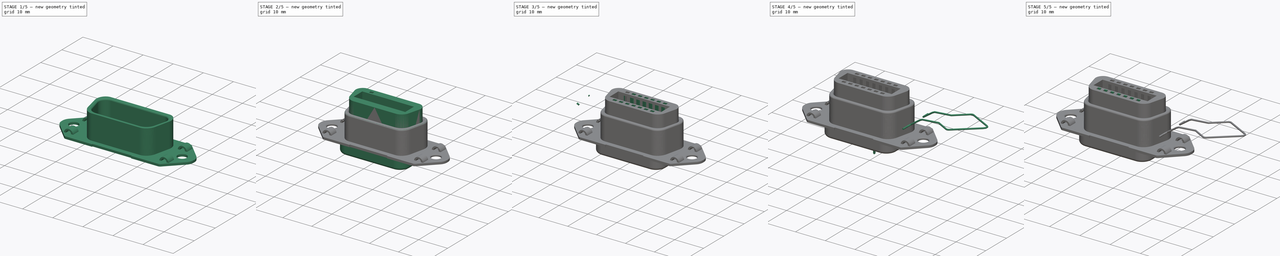
[diagram: build sequence overview — one tinted view per stage of 5, left to right]
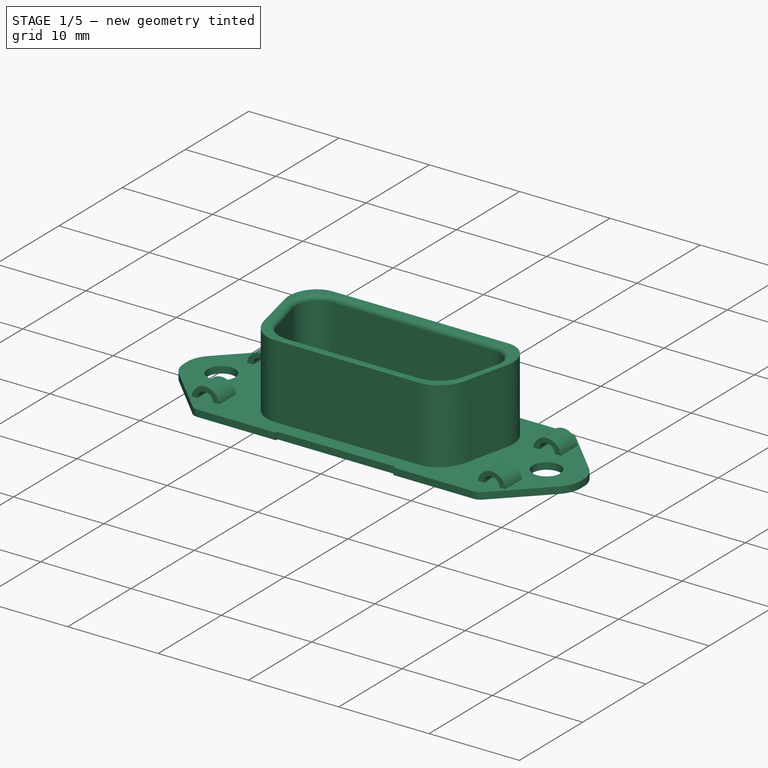
[diagram: stage 1 of 5 — iso view after this stage's code; geometry added in this stage tinted green]
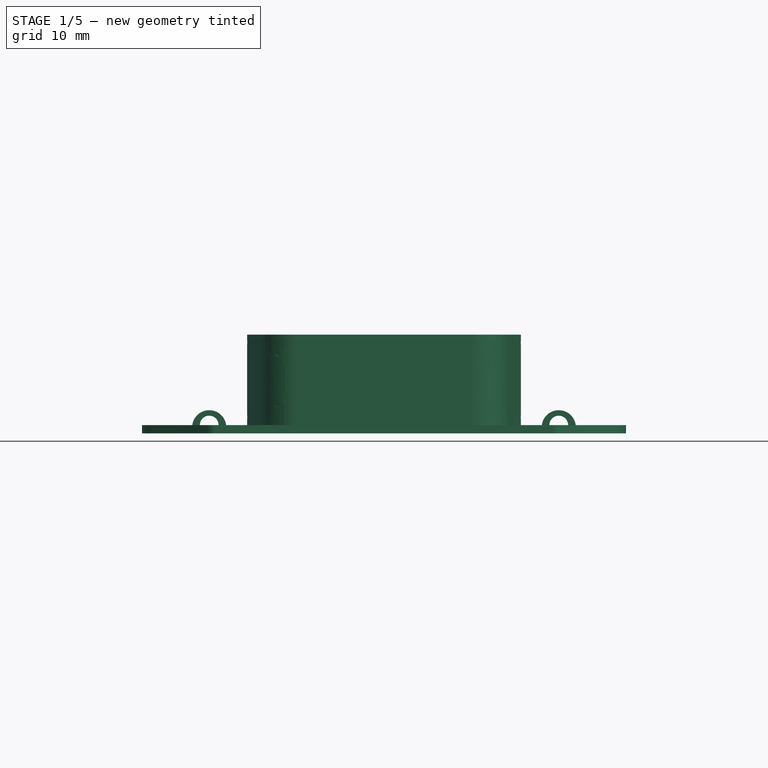
[diagram: stage 1 of 5 — front view after this stage's code; geometry added in this stage tinted green]
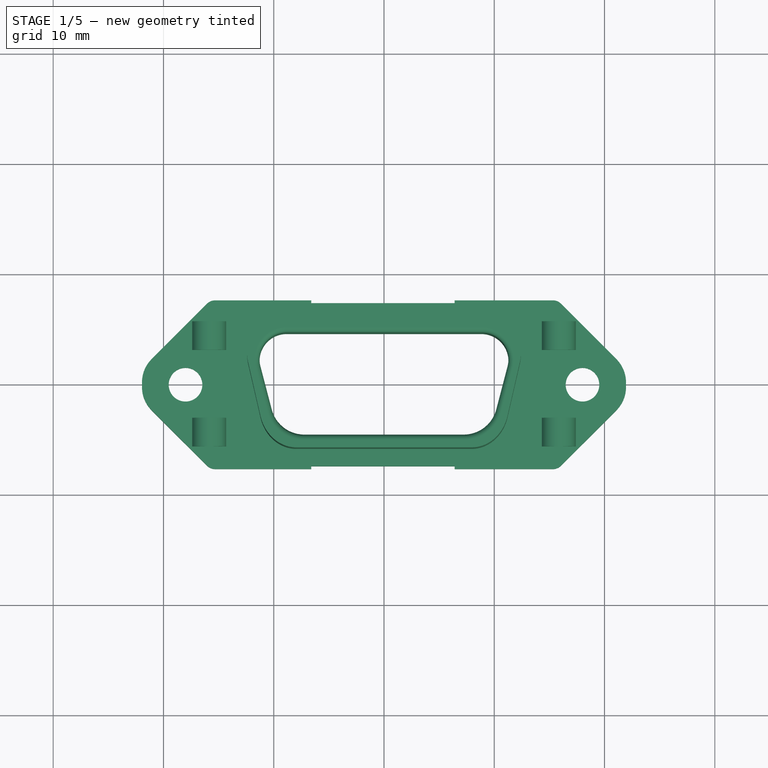
[diagram: stage 1 of 5 — top view after this stage's code; geometry added in this stage tinted green]
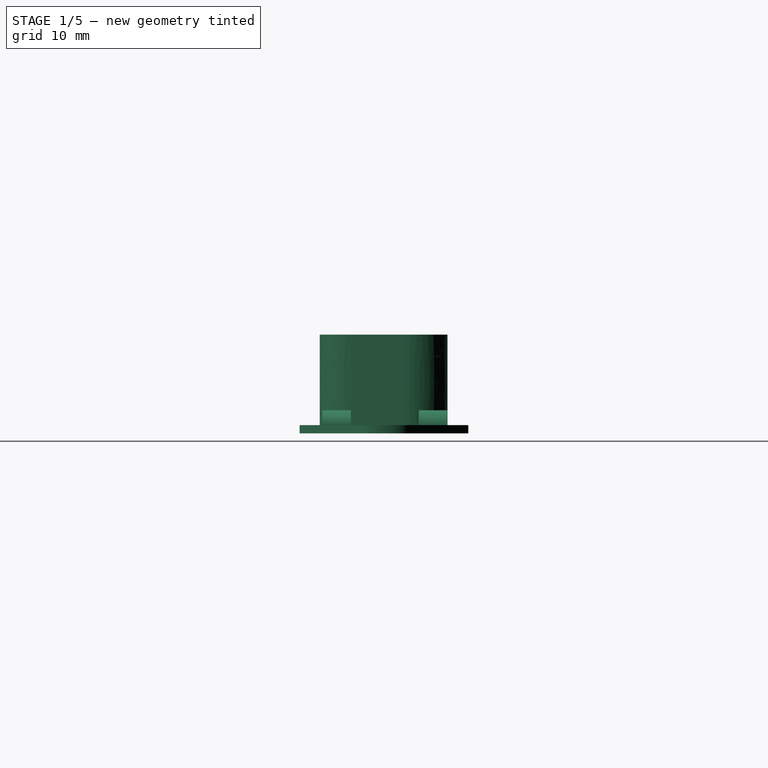
[diagram: stage 1 of 5 — right view after this stage's code; geometry added in this stage tinted green]
FCSTD DOCUMENT  (FreeCAD 0.20R29177 (Git))
Label: Norcomp_111-014-213L001
License: All rights reserved
LicenseURL: http://en.wikipedia.org/wiki/All_rights_reserved
objects: PartDesign::Fillet×13, Part::FeaturePython×12, PartDesign::AdditiveBox×11, PartDesign::Chamfer×11, PartDesign::SubtractiveBox×11, PartDesign::Mirrored×8, Sketcher::SketchObject×6, Part::Part2DObjectPython×5, PartDesign::AdditiveCylinder×4, PartDesign::Body×4, PartDesign::MultiTransform×4, PartDesign::SubtractiveCylinder×3, PartDesign::Pocket×3, PartDesign::LinearPattern×3, PartDesign::Pad×2, App::Part×2, Part::MultiFuse×1, PartDesign::FeatureBase×1
note: 159 computed .brp shape members not serialized (recipe doc carries the construction recipe); baked Part::Feature solids carry a one-line shape summary decoded from their .brp

FEATURE [Sketcher::SketchObject] Sketch001  label="pin-holes"
  FullyConstrained = false
  MapMode = 5
  Support = -> [XY_Plane017]
  sketch-geometry (16):
    g0: Circle CenterX=18 CenterY=0 CenterZ=0 NormalX=0 NormalY=0 NormalZ=1 AngleXU=0 Radius=1.525
    g1: Circle CenterX=-18 CenterY=0 CenterZ=0 NormalX=0 NormalY=0 NormalZ=1 AngleXU=0 Radius=1.525
    g2: Circle CenterX=6.48 CenterY=2.145 CenterZ=0 NormalX=0 NormalY=0 NormalZ=1 AngleXU=0 Radius=0.5
    g3: Circle CenterX=4.32 CenterY=2.145 CenterZ=0 NormalX=0 NormalY=0 NormalZ=1 AngleXU=0 Radius=0.5
    g4: Circle CenterX=2.16 CenterY=2.145 CenterZ=0 NormalX=0 NormalY=0 NormalZ=1 AngleXU=0 Radius=0.5
    g5: Circle CenterX=0 CenterY=2.145 CenterZ=0 NormalX=0 NormalY=0 NormalZ=1 AngleXU=0 Radius=0.5
    g6: Circle CenterX=-2.16 CenterY=2.145 CenterZ=0 NormalX=0 NormalY=0 NormalZ=1 AngleXU=0 Radius=0.5
    g7: Circle CenterX=-4.32 CenterY=2.145 CenterZ=0 NormalX=0 NormalY=0 NormalZ=1 AngleXU=0 Radius=0.5
    g8: Circle CenterX=-6.48 CenterY=2.145 CenterZ=0 NormalX=0 NormalY=0 NormalZ=1 AngleXU=0 Radius=0.5
    g9: Circle CenterX=0 CenterY=-2.145 CenterZ=0 NormalX=0 NormalY=0 NormalZ=1 AngleXU=0 Radius=0.5
    g10: Circle CenterX=6.48 CenterY=-2.145 CenterZ=0 NormalX=0 NormalY=0 NormalZ=1 AngleXU=0 Radius=0.5
    g11: Circle CenterX=4.32 CenterY=-2.145 CenterZ=0 NormalX=0 NormalY=0 NormalZ=1 AngleXU=0 Radius=0.5
    g12: Circle CenterX=2.16 CenterY=-2.145 CenterZ=0 NormalX=0 NormalY=0 NormalZ=1 AngleXU=0 Radius=0.5
    g13: Circle CenterX=-2.16 CenterY=-2.145 CenterZ=0 NormalX=0 NormalY=0 NormalZ=1 AngleXU=0 Radius=0.5
    g14: Circle CenterX=-4.32 CenterY=-2.145 CenterZ=0 NormalX=0 NormalY=0 NormalZ=1 AngleXU=0 Radius=0.5
    g15: Circle CenterX=-6.48 CenterY=-2.145 CenterZ=0 NormalX=0 NormalY=0 NormalZ=1 AngleXU=0 Radius=0.5
FEATURE [PartDesign::AdditiveBox] Box057
  AttacherType = Attacher::AttachEngine3D
  AttachmentOffset = pos=(-21.95,-7.65,-0.75) rot=(0,0,1;0rad)
  Height = 0.75
  Length = 43.9
  MapMode = 5
  Placement = pos=(-21.95,-7.65,-0.75) rot=(0,0,1;0rad)
  Support = -> [XY_Plane017]
  Width = 15.3
FEATURE [PartDesign::Chamfer] Chamfer004
  Angle = 45
  Base = -> Box057 [Edge1,Edge3,Edge7,Edge5]
  BaseFeature = -> Box057
  ChamferType = 0
  FlipDirection = false
  Placement = pos=(-21.95,-7.65,-0.75) rot=(0,0,1;0rad)
  Size = 6.2
  Size2 = 1
  SupportTransform = false
  UseAllEdges = false
FEATURE [PartDesign::Fillet] Fillet069
  Base = -> Chamfer004 [Edge2,Edge3,Edge24,Edge23]
  BaseFeature = -> Chamfer004
  Placement = pos=(-21.95,-7.65,-0.75) rot=(0,0,1;0rad)
  Radius = 3
  SupportTransform = false
  UseAllEdges = false
FEATURE [Sketcher::SketchObject] Sketch002  label="chassis001"
  FullyConstrained = false
  MapMode = 5
  Support = -> [XY_Plane017]
  sketch-geometry (22):
    g0: LineSegment StartX=15.5 StartY=-7.7 StartZ=0 EndX=-15.5 EndY=-7.7 EndZ=0
    g1: LineSegment StartX=-15.5 StartY=7.7 StartZ=0 EndX=15.5 EndY=7.7 EndZ=0
    g2: ArcOfCircle CenterX=-10.7 CenterY=5.404 CenterZ=0 NormalX=0 NormalY=0 NormalZ=1 AngleXU=1.8744 Radius=1.722 StartAngle=0 EndAngle=1.2672
    g3: LineSegment StartX=-11.1999 StartY=7.04954 StartZ=0 EndX=11.1999 EndY=7.04954 EndZ=0
    g4: ArcOfCircle CenterX=10.7 CenterY=5.404 CenterZ=0 NormalX=0 NormalY=0 NormalZ=1 AngleXU=1.2672 Radius=1.722 StartAngle=5.02159 EndAngle=6.28319
    g5: LineSegment StartX=-21.1655 StartY=2.01497 StartZ=0 EndX=-15.6356 EndY=7.63507 EndZ=0
    g6: LineSegment StartX=-15.6356 StartY=7.63507 StartZ=0 EndX=-15.5 EndY=7.7 EndZ=0
    g7: LineSegment StartX=-15.6356 StartY=-7.63507 StartZ=0 EndX=-21.1655 EndY=-2.01497 EndZ=0
    g8: LineSegment StartX=-15.5 StartY=-7.7 StartZ=0 EndX=-15.6356 EndY=-7.63507 EndZ=0
    g9: LineSegment StartX=15.6353 StartY=-7.63492 StartZ=0 EndX=15.5 EndY=-7.7 EndZ=0
    g10: LineSegment StartX=21.1655 StartY=-2.01497 StartZ=0 EndX=15.6356 EndY=-7.63507 EndZ=0
    g11: LineSegment StartX=15.6356 StartY=7.63507 StartZ=0 EndX=21.1655 EndY=2.01497 EndZ=0
    g12: LineSegment StartX=15.5224 StartY=7.69472 StartZ=0 EndX=15.6224 EndY=7.64472 EndZ=0
    g13: LineSegment StartX=-10.8716 StartY=-5.50704 StartZ=0 EndX=-12.4215 EndY=5.39696 EndZ=0
    g14: LineSegment StartX=6.42951e-06 StartY=-7.05136 StartZ=0 EndX=-9.65081 EndY=-7.0526 EndZ=0
    g15: LineSegment StartX=9.65081 StartY=-7.0446 StartZ=0 EndX=-6.42951e-06 EndY=-7.04336 EndZ=0
    g16: LineSegment StartX=12.4215 StartY=5.40496 StartZ=0 EndX=10.8716 EndY=-5.49904 EndZ=0
    g17: ArcOfCircle CenterX=-19.15 CenterY=4.441e-13 CenterZ=0 NormalX=0 NormalY=0 NormalZ=1 AngleXU=-2.35619 Radius=2.85 StartAngle=4.71246 EndAngle=6.28311
    g18: ArcOfCircle CenterX=19.15 CenterY=4.388e-13 CenterZ=0 NormalX=0 NormalY=0 NormalZ=1 AngleXU=-0.785398 Radius=2.85 StartAngle=7.12766e-05 EndAngle=1.57073
    g19: ArcOfCircle CenterX=10.7 CenterY=5.404 CenterZ=0 NormalX=0 NormalY=0 NormalZ=1 AngleXU=1.2672 Radius=1.722 StartAngle=5.01599 EndAngle=5.01996
    g20: ArcOfCircle CenterX=-9.15014 CenterY=-5.40446 CenterZ=0 NormalX=0 NormalY=0 NormalZ=1 AngleXU=-1.8744 Radius=1.72473 StartAngle=5.0743 EndAngle=6.28307
    g21: ArcOfCircle CenterX=9.15014 CenterY=-5.39646 CenterZ=0 NormalX=0 NormalY=0 NormalZ=1 AngleXU=-1.2672 Radius=1.72473 StartAngle=0.000111196 EndAngle=1.20889
FEATURE [PartDesign::AdditiveCylinder] Cylinder016  label="hinge-top-left"
  Angle = 180
  AttacherType = Attacher::AttachEngine3D
  AttachmentOffset = pos=(-15.85,5.75,-0.2) rot=(1,0,0;1.5708rad)
  BaseFeature = -> Fillet069
  FirstAngle = 0
  Height = 2.6
  MapMode = 5
  Placement = pos=(-15.85,5.75,-0.2) rot=(1,0,0;1.5708rad)
  Radius = 1.55
  SecondAngle = 0
  Support = -> [XY_Plane017]
FEATURE [PartDesign::AdditiveCylinder] Cylinder017  label="hinge-bot-left"
  Angle = 180
  AttacherType = Attacher::AttachEngine3D
  AttachmentOffset = pos=(-15.85,-3,-0.2) rot=(1,0,0;1.5708rad)
  BaseFeature = -> Cylinder016
  FirstAngle = 0
  Height = 2.6
  MapMode = 5
  Placement = pos=(-15.85,-3,-0.2) rot=(1,0,0;1.5708rad)
  Radius = 1.55
  SecondAngle = 0
  Support = -> [XY_Plane017]
FEATURE [PartDesign::AdditiveCylinder] Cylinder018  label="hinge-bot-right"
  Angle = 180
  AttacherType = Attacher::AttachEngine3D
  AttachmentOffset = pos=(15.85,-3,-0.2) rot=(1,0,0;1.5708rad)
  BaseFeature = -> Cylinder017
  FirstAngle = 0
  Height = 2.6
  MapMode = 5
  Placement = pos=(15.85,-3,-0.2) rot=(1,0,0;1.5708rad)
  Radius = 1.55
  SecondAngle = 0
  Support = -> [XY_Plane017]
FEATURE [PartDesign::AdditiveCylinder] Cylinder019  label="hinge-top-right"
  Angle = 180
  AttacherType = Attacher::AttachEngine3D
  AttachmentOffset = pos=(15.85,5.75,-0.2) rot=(1,0,0;1.5708rad)
  BaseFeature = -> Cylinder018
  FirstAngle = 0
  Height = 2.6
  MapMode = 5
  Placement = pos=(15.85,5.75,-0.2) rot=(1,0,0;1.5708rad)
  Radius = 1.55
  SecondAngle = 0
  Support = -> [XY_Plane017]
FEATURE [PartDesign::SubtractiveCylinder] Cylinder020  label="hinge-holes-left"
  Angle = 180
  AttacherType = Attacher::AttachEngine3D
  AttachmentOffset = pos=(-15.85,7,0) rot=(1,0,0;1.5708rad)
  BaseFeature = -> Cylinder019
  FirstAngle = 0
  Height = 14
  MapMode = 5
  Placement = pos=(-15.85,7,0) rot=(1,0,0;1.5708rad)
  Radius = 0.85
  SecondAngle = 0
  Support = -> [XY_Plane017]
FEATURE [PartDesign::SubtractiveCylinder] Cylinder021  label="hinge-holes-right"
  Angle = 180
  AttacherType = Attacher::AttachEngine3D
  AttachmentOffset = pos=(15.85,7,0) rot=(1,0,0;1.5708rad)
  BaseFeature = -> Cylinder020
  FirstAngle = 0
  Height = 14
  MapMode = 5
  Placement = pos=(15.85,7,0) rot=(1,0,0;1.5708rad)
  Radius = 0.85
  SecondAngle = 0
  Support = -> [XY_Plane017]
FEATURE [PartDesign::Fillet] Fillet070
  Base = -> Cylinder021 [Edge31,Edge58,Edge62,Edge60]
  BaseFeature = -> Cylinder021
  Placement = pos=(15.85,7,0) rot=(1,0,0;1.5708rad)
  Radius = 1
  SupportTransform = false
  UseAllEdges = false
FEATURE [PartDesign::Pocket] Pocket  label="attach_n_pin-holes"
  BaseFeature = -> Fillet070
  Direction = (0,0,-1)
  Length = 2
  Length2 = 5
  Placement = pos=(15.85,7,0) rot=(1,0,0;1.5708rad)
  Profile = -> Sketch001
  ReferenceAxis = -> Sketch001 [N_Axis]
  Type = 0
FEATURE [Sketcher::SketchObject] Sketch003  label="plastic-opening"
  FullyConstrained = false
  sketch-geometry (10):
    g0: LineSegment StartX=-8.83497 StartY=4.60395 StartZ=0 EndX=0 EndY=4.60395 EndZ=0
    g1: LineSegment StartX=0 StartY=-4.65895 StartZ=0 EndX=-7.23029 EndY=-4.65895 EndZ=0
    g2: LineSegment StartX=-11.2063 StartY=1.5329 StartZ=0 EndX=-10.1838 EndY=-2.37837 EndZ=0
    g3: ArcOfCircle CenterX=-8.83497 CenterY=2.15287 CenterZ=0 NormalX=0 NormalY=0 NormalZ=1 AngleXU=0 Radius=2.45107 StartAngle=1.5708 EndAngle=3.39731
    g4: ArcOfCircle CenterX=-7.23029 CenterY=-1.60621 CenterZ=0 NormalX=0 NormalY=0 NormalZ=1 AngleXU=0 Radius=3.05275 StartAngle=3.39731 EndAngle=4.71239
    g5: LineSegment StartX=8.83497 StartY=4.60395 StartZ=0 EndX=0 EndY=4.60395 EndZ=0
    g6: LineSegment StartX=0 StartY=-4.65895 StartZ=0 EndX=7.23029 EndY=-4.65895 EndZ=0
    g7: LineSegment StartX=11.2063 StartY=1.5329 StartZ=0 EndX=10.1838 EndY=-2.37837 EndZ=0
    g8: ArcOfCircle CenterX=8.83497 CenterY=2.15287 CenterZ=0 NormalX=0 NormalY=0 NormalZ=1 AngleXU=0 Radius=2.45107 StartAngle=6.02747 EndAngle=7.85398
    g9: ArcOfCircle CenterX=7.23029 CenterY=-1.60621 CenterZ=0 NormalX=0 NormalY=0 NormalZ=1 AngleXU=0 Radius=3.05275 StartAngle=4.71239 EndAngle=6.02747
  constraints (12):
    c: Horizontal(g0)
    c: Horizontal(g1)
    c: Tangent(g0,g3) = 1.5708
    c: Tangent(g2,g3) = -1.5708
    c: Tangent(g2,g4) = -1.5708
    c: Tangent(g1,g4) = 1.5708
    c: Horizontal(g5)
    c: Horizontal(g6)
    c: Tangent(g5,g8) = -1.5708
    c: Tangent(g7,g8) = 1.5708
    c: Tangent(g7,g9) = 1.5708
    c: Tangent(g6,g9) = -1.5708
FEATURE [PartDesign::SubtractiveBox] Box  label="top-edge-cut"
  AttacherType = Attacher::AttachEngine3D
  AttachmentOffset = pos=(-6.6,7.4,-1) rot=(0,0,1;0rad)
  BaseFeature = -> Pocket
  Height = 1
  Length = 13
  MapMode = 5
  Placement = pos=(-6.6,7.4,-1) rot=(0,0,1;0rad)
  Support = -> [XY_Plane017]
  Width = 0.5
FEATURE [PartDesign::SubtractiveBox] Box058  label="bot-edge-cut"
  AttacherType = Attacher::AttachEngine3D
  AttachmentOffset = pos=(-6.6,-7.9,-1) rot=(0,0,1;0rad)
  BaseFeature = -> Box
  Height = 1
  Length = 13
  MapMode = 5
  Placement = pos=(-6.6,-7.9,-1) rot=(0,0,1;0rad)
  Support = -> [XY_Plane017]
  Width = 0.5
FEATURE [Sketcher::SketchObject] Sketch  label="outer-metal"
  FullyConstrained = false
  sketch-geometry (10):
    g0: BSplineCurve PolesCount=3 KnotsCount=2 Degree=2 IsPeriodic=0
    g1: BSplineCurve PolesCount=2 KnotsCount=2 Degree=1 IsPeriodic=0
    g2: BSplineCurve PolesCount=2 KnotsCount=2 Degree=1 IsPeriodic=0
    g3: BSplineCurve PolesCount=3 KnotsCount=2 Degree=2 IsPeriodic=0
    g4: BSplineCurve PolesCount=2 KnotsCount=2 Degree=1 IsPeriodic=0
    g5: BSplineCurve PolesCount=3 KnotsCount=2 Degree=2 IsPeriodic=0
    g6: BSplineCurve PolesCount=2 KnotsCount=2 Degree=1 IsPeriodic=0
    g7: BSplineCurve PolesCount=2 KnotsCount=2 Degree=1 IsPeriodic=0
    g8: BSplineCurve PolesCount=3 KnotsCount=2 Degree=2 IsPeriodic=0
    g9: BSplineCurve PolesCount=2 KnotsCount=2 Degree=1 IsPeriodic=0
FEATURE [PartDesign::Pad] Pad001
  BaseFeature = -> Box058
  Direction = (0,0,1)
  Length = 8.2
  Length2 = 10
  Placement = pos=(-6.6,-7.9,-1) rot=(0,0,1;0rad)
  Profile = -> Sketch
  ReferenceAxis = -> Sketch [N_Axis]
  Type = 0
FEATURE [PartDesign::Pocket] Pocket001  label="plastic-hole"
  BaseFeature = -> Pad001
  Direction = (0,0,-1)
  Length = 18
  Length2 = 5
  Midplane = true
  Placement = pos=(-6.6,-7.9,-1) rot=(0,0,1;0rad)
  Profile = -> Sketch003
  ReferenceAxis = -> Sketch003 [N_Axis]
  Type = 0
FEATURE [PartDesign::Fillet] Fillet  label="inner-plast-hole"
  Base = -> Pocket001 [Edge116,Edge114,Edge97,Edge100,Edge102,Edge104,Edge106,Edge108,Edge110,Edge112]
  BaseFeature = -> Pocket001
  Placement = pos=(-6.6,-7.9,-1) rot=(0,0,1;0rad)
  Radius = 0.5
  SupportTransform = false
  UseAllEdges = false
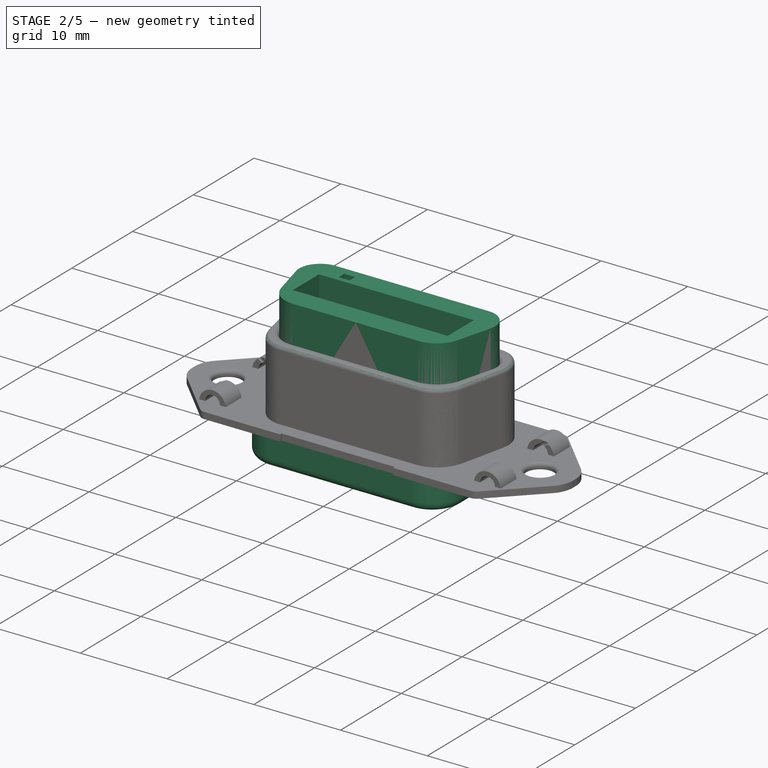
[diagram: stage 2 of 5 — iso view after this stage's code; geometry added in this stage tinted green]
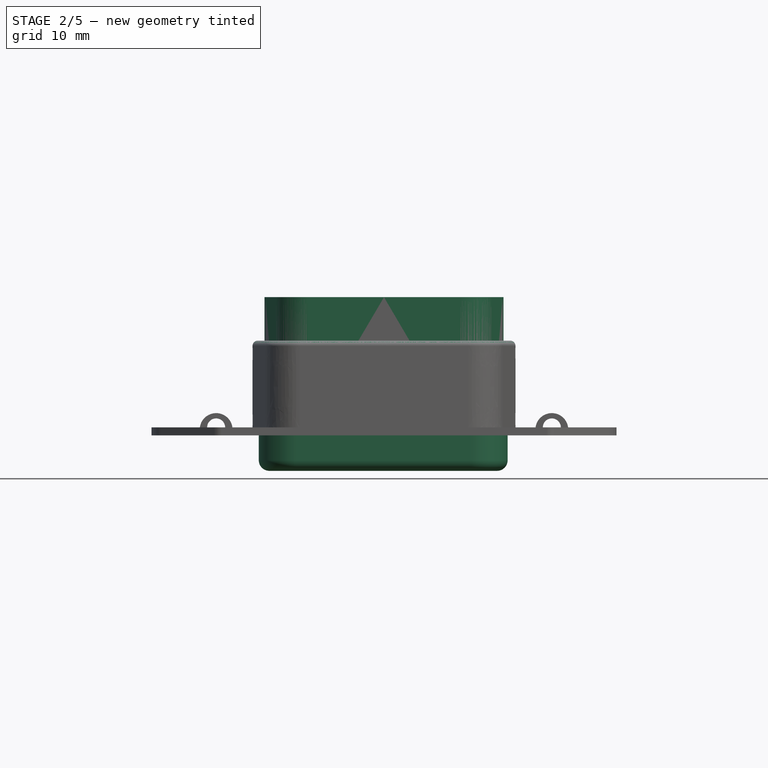
[diagram: stage 2 of 5 — front view after this stage's code; geometry added in this stage tinted green]
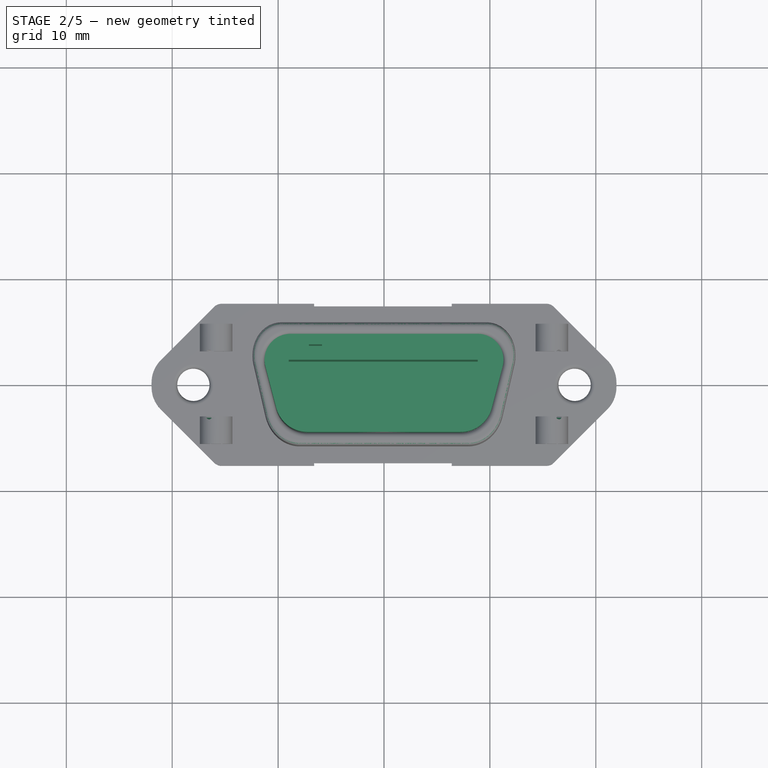
[diagram: stage 2 of 5 — top view after this stage's code; geometry added in this stage tinted green]
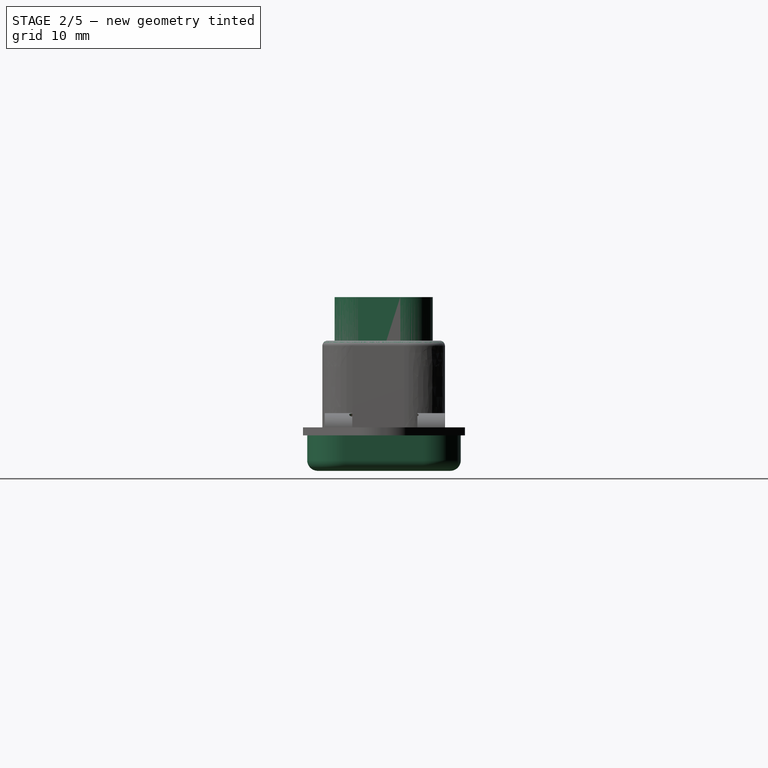
[diagram: stage 2 of 5 — right view after this stage's code; geometry added in this stage tinted green]
FEATURE [Sketcher::SketchObject] Sketch004  label="plastic-mass"
  FullyConstrained = false
  sketch-geometry (10):
    g0: LineSegment StartX=-8.83497 StartY=4.60395 StartZ=0 EndX=0 EndY=4.60395 EndZ=0
    g1: LineSegment StartX=0 StartY=-4.65895 StartZ=0 EndX=-7.23029 EndY=-4.65895 EndZ=0
    g2: LineSegment StartX=-11.2063 StartY=1.5329 StartZ=0 EndX=-10.1838 EndY=-2.37837 EndZ=0
    g3: ArcOfCircle CenterX=-8.83497 CenterY=2.15287 CenterZ=0 NormalX=0 NormalY=0 NormalZ=1 AngleXU=0 Radius=2.45107 StartAngle=1.5708 EndAngle=3.39731
    g4: ArcOfCircle CenterX=-7.23029 CenterY=-1.60621 CenterZ=0 NormalX=0 NormalY=0 NormalZ=1 AngleXU=0 Radius=3.05275 StartAngle=3.39731 EndAngle=4.71239
    g5: LineSegment StartX=8.83497 StartY=4.60395 StartZ=0 EndX=0 EndY=4.60395 EndZ=0
    g6: LineSegment StartX=0 StartY=-4.65895 StartZ=0 EndX=7.23029 EndY=-4.65895 EndZ=0
    g7: LineSegment StartX=11.2063 StartY=1.5329 StartZ=0 EndX=10.1838 EndY=-2.37837 EndZ=0
    g8: ArcOfCircle CenterX=8.83497 CenterY=2.15287 CenterZ=0 NormalX=0 NormalY=0 NormalZ=1 AngleXU=0 Radius=2.45107 StartAngle=6.02747 EndAngle=7.85398
    g9: ArcOfCircle CenterX=7.23029 CenterY=-1.60621 CenterZ=0 NormalX=0 NormalY=0 NormalZ=1 AngleXU=0 Radius=3.05275 StartAngle=4.71239 EndAngle=6.02747
  constraints (12):
    c: Horizontal(g0)
    c: Horizontal(g1)
    c: Tangent(g0,g3) = 1.5708
    c: Tangent(g2,g3) = -1.5708
    c: Tangent(g2,g4) = -1.5708
    c: Tangent(g1,g4) = 1.5708
    c: Horizontal(g5)
    c: Horizontal(g6)
    c: Tangent(g5,g8) = -1.5708
    c: Tangent(g7,g8) = 1.5708
    c: Tangent(g7,g9) = 1.5708
    c: Tangent(g6,g9) = -1.5708
FEATURE [PartDesign::Pad] Pad  label="plastic-base"
  Direction = (0,0,1)
  Length = 12.3
  Length2 = 10
  Profile = -> Sketch004
  ReferenceAxis = -> Sketch004 [N_Axis]
  Type = 0
FEATURE [PartDesign::SubtractiveBox] Box059
  AttacherType = Attacher::AttachEngine3D
  AttachmentOffset = pos=(-9,-2.15,2.3) rot=(0,0,1;0rad)
  BaseFeature = -> Pad
  Height = 10
  Length = 17.85
  MapMode = 5
  Placement = pos=(-9,-2.15,2.3) rot=(0,0,1;0rad)
  Support = -> [XY_Plane002]
  Width = 4.3
FEATURE [PartDesign::Fillet] Fillet071  label="outer-plast-hole"
  Base = -> Fillet [Edge60,Edge59,Edge61,Edge63,Edge65,Edge67,Edge68,Edge66,Edge64,Edge62]
  BaseFeature = -> Fillet
  Placement = pos=(-6.6,-7.9,-1) rot=(0,0,1;0rad)
  Radius = 0.5
  SupportTransform = false
  UseAllEdges = false
FEATURE [PartDesign::SubtractiveBox] Box060  label="front-hole-top-leftmost"
  AttacherType = Attacher::AttachEngine3D
  AttachmentOffset = pos=(-7.1,2.7,5) rot=(0,0,1;0rad)
  BaseFeature = -> Box059
  Height = 7.5
  Length = 1.25
  MapMode = 5
  Placement = pos=(-7.1,2.7,5) rot=(0,0,1;0rad)
  Support = -> [XY_Plane002]
  Width = 0.9
FEATURE [PartDesign::Fillet] Fillet072  label="attach-holes-smooth"
  Base = -> Fillet071 [Edge261,Edge259,Edge260,Edge263,Edge265,Edge264]
  BaseFeature = -> Fillet071
  Placement = pos=(-6.6,-7.9,-1) rot=(0,0,1;0rad)
  Radius = 0.4
  SupportTransform = false
  UseAllEdges = false
FEATURE [Sketcher::SketchObject] Sketch005  label="pin-holes001"
  FullyConstrained = false
  MapMode = 5
  Support = -> [XY_Plane002]
  sketch-geometry (10):
    g0: ArcOfCircle CenterX=-7.18 CenterY=2.34 CenterZ=0 NormalX=0 NormalY=0 NormalZ=1 AngleXU=0 Radius=0.1 StartAngle=3.14159 EndAngle=4.71239
    g1: LineSegment StartX=-7.28 StartY=2.34 StartZ=0 EndX=-7.28 EndY=2.54 EndZ=0
    g2: ArcOfCircle CenterX=-7.18 CenterY=2.54 CenterZ=0 NormalX=0 NormalY=0 NormalZ=1 AngleXU=0 Radius=0.1 StartAngle=1.5708 EndAngle=3.14159
    g3: LineSegment StartX=-7.18 StartY=2.64 StartZ=0 EndX=-5.78 EndY=2.64 EndZ=0
    g4: ArcOfCircle CenterX=-5.78 CenterY=2.54 CenterZ=0 NormalX=0 NormalY=0 NormalZ=1 AngleXU=0 Radius=0.1 StartAngle=-1.8e-15 EndAngle=1.5708
    g5: LineSegment StartX=-5.68 StartY=2.54 StartZ=0 EndX=-5.68 EndY=2.34 EndZ=0
    g6: ArcOfCircle CenterX=-5.78 CenterY=2.34 CenterZ=0 NormalX=0 NormalY=0 NormalZ=1 AngleXU=0 Radius=0.1 StartAngle=4.71239 EndAngle=6.28319
    g7: LineSegment StartX=-5.78 StartY=2.24 StartZ=0 EndX=-7.18 EndY=2.24 EndZ=0
    g8: GeomPoint X=-7.28 Y=2.24 Z=0
    g9: GeomPoint X=-5.68 Y=2.64 Z=0
  constraints (19):
    c: Tangent(g0,g1) = 1.5708
    c: Tangent(g1,g2) = 1.5708
    c: Tangent(g2,g3) = 1.5708
    c: Tangent(g3,g4) = 1.5708
    c: Tangent(g4,g5) = 1.5708
    c: Tangent(g5,g6) = 1.5708
    c: Tangent(g6,g7) = 1.5708
    c: Tangent(g7,g0) = 1.5708
    c: Horizontal(g3)
    c: Horizontal(g7)
    c: Vertical(g1)
    c: Vertical(g5)
    c: Equal(g0,g2)
    c: Equal(g2,g4)
    c: Equal(g4,g6)
    c: PointOnObject(g8,g1)
    c: PointOnObject(g8,g7)
    c: PointOnObject(g9,g3)
    c: PointOnObject(g9,g5)
FEATURE [PartDesign::Pocket] Pocket002  label="pinhole-back"
  AlongSketchNormal = false
  BaseFeature = -> Box060
  Direction = (0,0,-1)
  Length = 4.6
  Length2 = 0
  Midplane = true
  Placement = pos=(-7.1,2.7,5) rot=(0,0,1;0rad)
  Profile = -> Sketch005
  ReferenceAxis = -> Sketch005 [N_Axis]
  Type = 4
FEATURE [PartDesign::SubtractiveCylinder] Cylinder  label="hinge-groove-left-top"
  Angle = 180
  AttacherType = Attacher::AttachEngine3D
  AttachmentOffset = pos=(-15.475,3,0.46) rot=(0,-1,0;0.959931rad)
  BaseFeature = -> Fillet072
  FirstAngle = 0
  Height = 1.4
  MapMode = 5
  Placement = pos=(-15.475,3,0.46) rot=(0,-1,0;0.959931rad)
  Radius = 0.28
  SecondAngle = 0
  Support = -> [XY_Plane017]
FEATURE [PartDesign::Mirrored] Mirrored002
  MirrorPlane = -> YZ_Plane017
  Placement = pos=(-15.475,3,0.46) rot=(0,-1,0;0.959931rad)
FEATURE [PartDesign::Mirrored] Mirrored003
  MirrorPlane = -> XZ_Plane017
  Placement = pos=(-15.475,3,0.46) rot=(0,-1,0;0.959931rad)
FEATURE [PartDesign::MultiTransform] MultiTransform002  label="hinge-grooves"
  BaseFeature = -> Cylinder
  Originals = -> [Cylinder]
  Placement = pos=(-15.475,3,0.46) rot=(0,-1,0;0.959931rad)
  Transformations = -> [Mirrored002,Mirrored003]
FEATURE [PartDesign::AdditiveBox] Box075  label="back-cover-left"
  AttacherType = Attacher::AttachEngine3D
  AttachmentOffset = pos=(-11.5,-4.7,-0.75) rot=(0,0,1;0rad)
  BaseFeature = -> MultiTransform002
  Height = 0.3
  Length = 4
  MapMode = 5
  Placement = pos=(-11.5,-4.7,-0.75) rot=(0,0,1;0rad)
  Support = -> [XY_Plane017]
  Width = 9.3
FEATURE [PartDesign::Mirrored] Mirrored006  label="back-cover-right"
  BaseFeature = -> Box075
  MirrorPlane = -> YZ_Plane017
  Originals = -> [Box075]
  Placement = pos=(-11.5,-4.7,-0.75) rot=(0,0,1;0rad)
FEATURE [PartDesign::Body] Body002  label="Plastic-insert"
  Group = -> [Sketch004,Pad,Box059,Box060,Sketch005,Pocket002,MultiTransform,LinearPattern,Mirrored,MultiTransform001,LinearPattern001,Mirrored001,Box073,MultiTransform003,LinearPattern002,Mirrored004,Box074,Mirrored005,Box076,Mirrored007,Box077,Box078,Fillet076]
  Origin = -> Origin002
  Placement = pos=(0,0,0.05) rot=(0,0,1;0rad)
  Tip = -> Fillet076
FEATURE [PartDesign::AdditiveBox] Box079
  AttacherType = Attacher::AttachEngine3D
  AttachmentOffset = pos=(-11.825,-7.25,-4.1) rot=(0,0,1;0rad)
  BaseFeature = -> Mirrored006
  Height = 3.5
  Length = 23.5
  MapMode = 5
  Placement = pos=(-11.825,-7.25,-4.1) rot=(0,0,1;0rad)
  Support = -> [XY_Plane017]
  Width = 14.5
FEATURE [PartDesign::SubtractiveBox] Box080
  AttacherType = Attacher::AttachEngine3D
  AttachmentOffset = pos=(-10,-5.8,-5) rot=(0,0,1;0rad)
  BaseFeature = -> Box079
  Height = 4.5
  Length = 20
  MapMode = 5
  Placement = pos=(-10,-5.8,-5) rot=(0,0,1;0rad)
  Support = -> [XY_Plane017]
  Width = 11.6
FEATURE [PartDesign::Fillet] Fillet077
  Base = -> Box080 [Edge105,Edge107,Edge102,Edge103]
  BaseFeature = -> Box080
  Placement = pos=(-10,-5.8,-5) rot=(0,0,1;0rad)
  Radius = 3.5
  SupportTransform = false
  UseAllEdges = false
FEATURE [PartDesign::Fillet] Fillet078
  Base = -> Fillet077 [Edge197,Edge201,Edge195,Edge199]
  BaseFeature = -> Fillet077
  Placement = pos=(-10,-5.8,-5) rot=(0,0,1;0rad)
  Radius = 2.5
  SupportTransform = false
  UseAllEdges = false
FEATURE [PartDesign::Fillet] Fillet079
  Base = -> Fillet078 [Edge13,Edge11,Edge9,Edge10,Edge12,Edge14,Edge16,Edge15]
  BaseFeature = -> Fillet078
  Placement = pos=(-10,-5.8,-5) rot=(0,0,1;0rad)
  Radius = 1
  SupportTransform = false
  UseAllEdges = false
FEATURE [PartDesign::Fillet] Fillet080
  Base = -> Fillet079 [Edge102,Edge101]
  BaseFeature = -> Fillet079
  Placement = pos=(-10,-5.8,-5) rot=(0,0,1;0rad)
  Radius = 0.2
  SupportTransform = false
  UseAllEdges = false
FEATURE [PartDesign::Body] Body016  label="chassis-metal"
  Group = -> [Sketch002,Sketch003,Box057,Chamfer004,Fillet069,Cylinder016,Cylinder017,Cylinder018,Cylinder019,Cylinder020,Cylinder021,Fillet070,Sketch001,Pocket,Box,Box058,Sketch,Pad001,Pocket001,Fillet,Fillet071,Fillet072,Cylinder,MultiTransform002,Mirrored002,Mirrored003,Box075,Mirrored006,Box079,Box080,Fillet077,Fillet078,Fillet079,Fillet080]
  Origin = -> Origin017
  Placement = pos=(0,0,4.5) rot=(0,0,1;0rad)
  Tip = -> Fillet080
FEATURE [App::Part] Part001  label="Norcomp_111-014-213L001"
  Group = -> [Body002,Body016,Body017,Array,Clone001,Part]
  Origin = -> Origin020
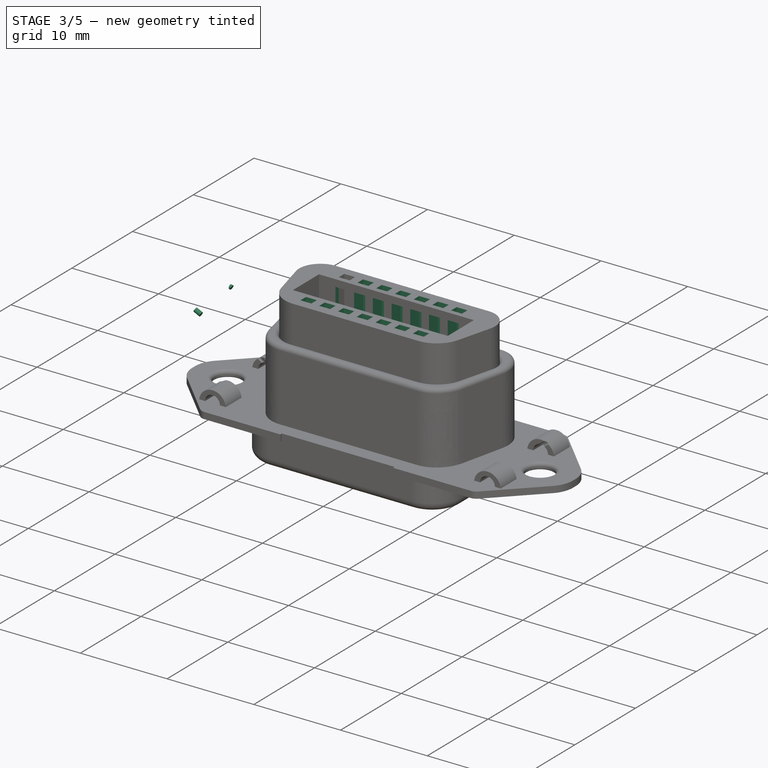
[diagram: stage 3 of 5 — iso view after this stage's code; geometry added in this stage tinted green]
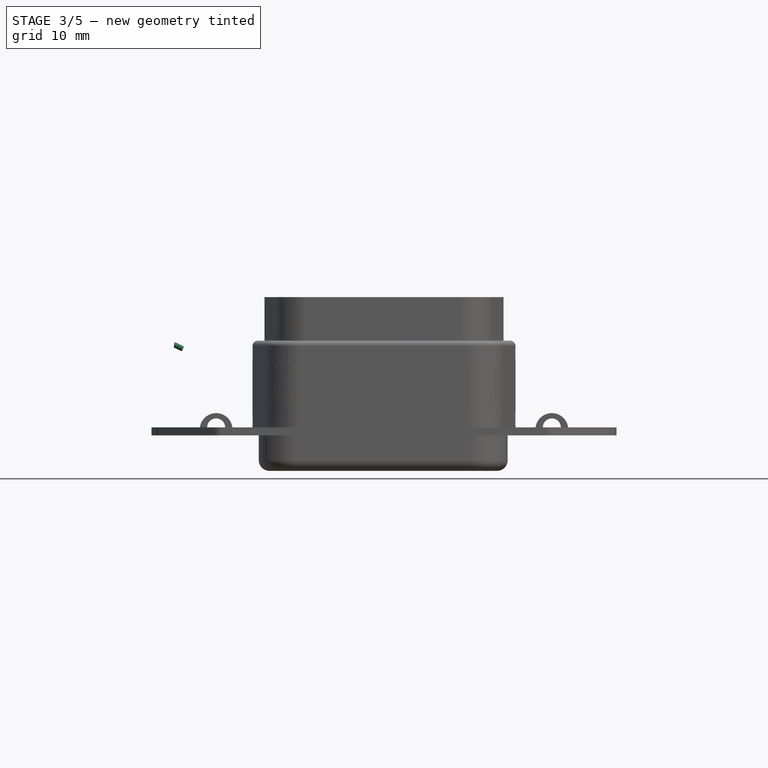
[diagram: stage 3 of 5 — front view after this stage's code; geometry added in this stage tinted green]
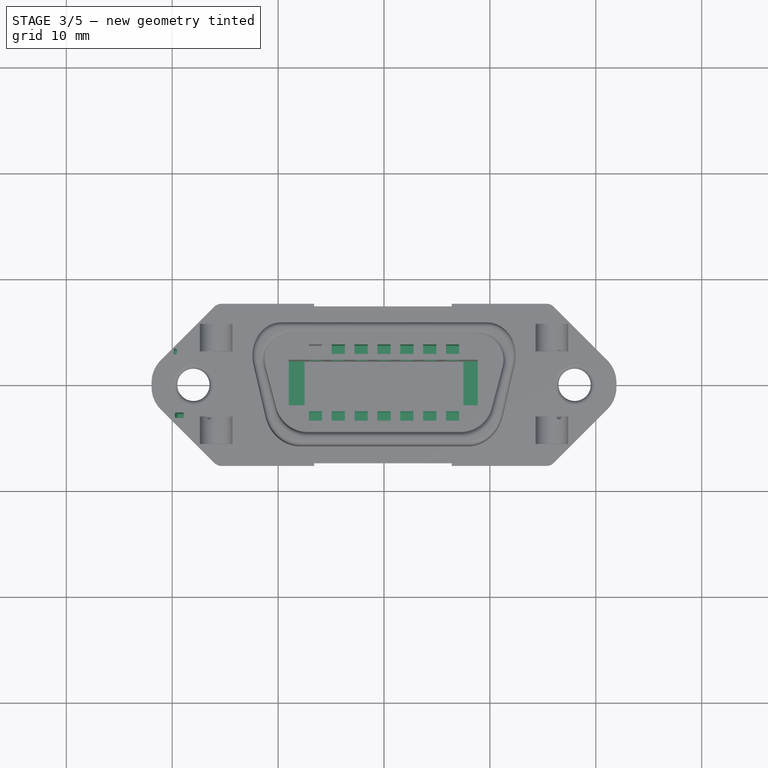
[diagram: stage 3 of 5 — top view after this stage's code; geometry added in this stage tinted green]
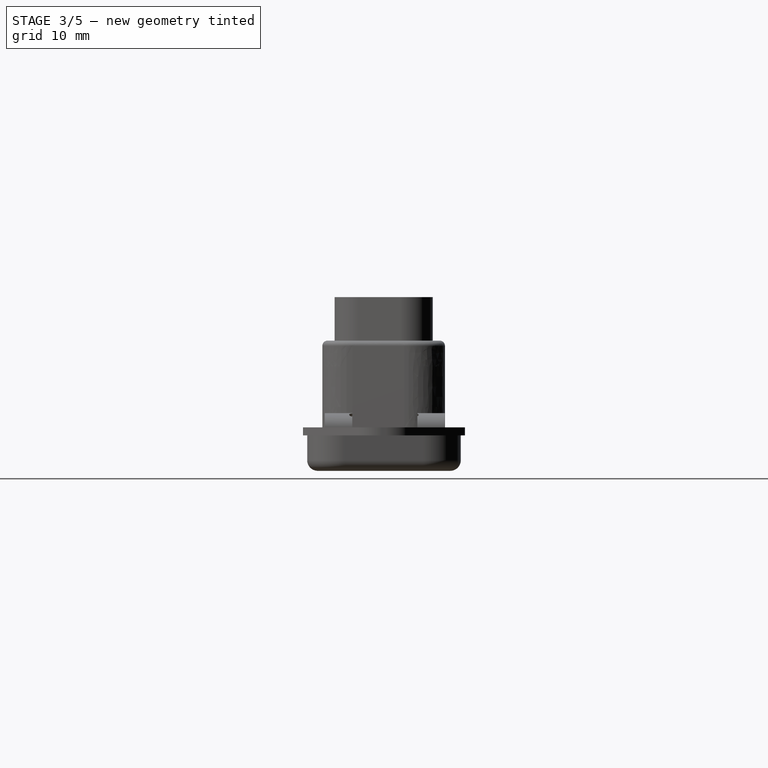
[diagram: stage 3 of 5 — right view after this stage's code; geometry added in this stage tinted green]
FEATURE [Part::FeaturePython] Pipe001  label="small-top"  # Arch/BIM 98 (typed FeaturePython)
  Base = -> Line002
  Diameter = 0.5
  HorizontalArea = 0
  IfcData = attributes={"GlobalId": {"name": "GlobalId", "type": "IfcGloballyUniqueId", "is_enum": false, "enum_values": []}, "Description": {"... (+487 chars omitted),+1 more (map truncated)
  IfcType = 98
  Length = 0.736202
  MoveBase = false
  MoveWithHost = false
  OffsetEnd = 0.0936098
  OffsetStart = 0.0384367
  PerimeterLength = 0
  PredefinedType = 0
  VerticalArea = 0
  WallThickness = 0
FEATURE [Part::FeaturePython] Pipe002  label="pipe-mid"  # Arch/BIM 98 (typed FeaturePython)
  Base = -> Wire002
  Diameter = 0.5
  HorizontalArea = 0
  IfcData = attributes={"GlobalId": {"name": "GlobalId", "type": "IfcGloballyUniqueId", "is_enum": false, "enum_values": []}, "Description": {"... (+487 chars omitted),+1 more (map truncated)
  IfcType = 98
  Length = 44.8277
  MoveBase = false
  MoveWithHost = false
  OffsetEnd = 0.0936098
  OffsetStart = 0.0936098
  PerimeterLength = 0
  PredefinedType = 0
  VerticalArea = 0
  WallThickness = 0
FEATURE [Part::FeaturePython] Pipe004  label="small-bot"  # Arch/BIM 98 (typed FeaturePython)
  Base = -> Line001
  Diameter = 0.5
  HorizontalArea = 0
  IfcData = attributes={"GlobalId": {"name": "GlobalId", "type": "IfcGloballyUniqueId", "is_enum": false, "enum_values": []}, "Description": {"... (+487 chars omitted),+1 more (map truncated)
  IfcType = 98
  Length = 0.736202
  MoveBase = false
  MoveWithHost = false
  OffsetEnd = 0.0936098
  OffsetStart = 0.0384367
  PerimeterLength = 0
  PredefinedType = 0
  VerticalArea = 0
  WallThickness = 0
FEATURE [Part::FeaturePython] Connector001  label="con-top-hi"  # Arch/BIM 97 (typed FeaturePython)
  ConnectorType = 0
  HorizontalArea = 0
  IfcData = attributes={"GlobalId": {"name": "GlobalId", "type": "IfcGloballyUniqueId", "is_enum": false, "enum_values": []}, "Description": {"... (+498 chars omitted),+1 more (map truncated)
  IfcType = 97
  MoveBase = false
  MoveWithHost = false
  PerimeterLength = 0
  Pipes = -> [Pipe001,Pipe002]
  PredefinedType = 0
  Radius = 0.5
  VerticalArea = 0
FEATURE [App::Part] Part  label="Handles"
  Group = -> [Pipe002,Pipe004,Pipe003,Connector002,Pipe,Connector003,Connector,Pipe001,Connector001,Fusion,Line002,Wire002,Wire003,Line001,Wire001,Body,Clone]
  Origin = -> Origin019
FEATURE [PartDesign::LinearPattern] LinearPattern
  Direction = -> Sketch005 [H_Axis]
  Length = 12.96
  Occurrences = 7
  Placement = pos=(-7.1,2.7,5) rot=(0,0,1;0rad)
FEATURE [PartDesign::Mirrored] Mirrored
  MirrorPlane = -> Sketch005 [H_Axis]
  Placement = pos=(-7.1,2.7,5) rot=(0,0,1;0rad)
FEATURE [PartDesign::MultiTransform] MultiTransform  label="pinholes-back"
  BaseFeature = -> Pocket002
  Originals = -> [Pocket002]
  Placement = pos=(-7.1,2.7,5) rot=(0,0,1;0rad)
  Transformations = -> [LinearPattern,Mirrored]
FEATURE [PartDesign::LinearPattern] LinearPattern001
  Direction = -> X_Axis002
  Length = 12.95
  Occurrences = 7
  Placement = pos=(-7.1,2.7,5) rot=(0,0,1;0rad)
FEATURE [PartDesign::Mirrored] Mirrored001
  MirrorPlane = -> XZ_Plane002
  Placement = pos=(-7.1,2.7,5) rot=(0,0,1;0rad)
FEATURE [PartDesign::MultiTransform] MultiTransform001  label="pinholes-front"
  BaseFeature = -> MultiTransform
  Originals = -> [Box060]
  Placement = pos=(-7.1,2.7,5) rot=(0,0,1;0rad)
  Transformations = -> [LinearPattern001,Mirrored001]
FEATURE [PartDesign::SubtractiveBox] Box073  label="pin-slot"
  AttacherType = Attacher::AttachEngine3D
  AttachmentOffset = pos=(-7.1,-3,6.5) rot=(0,0,1;0rad)
  BaseFeature = -> MultiTransform001
  Height = 5
  Length = 1.27
  MapMode = 5
  Placement = pos=(-7.1,-3,6.5) rot=(0,0,1;0rad)
  Support = -> [XY_Plane002]
  Width = 1.3
FEATURE [PartDesign::LinearPattern] LinearPattern002
  Direction = -> X_Axis002
  Length = 12.94
  Occurrences = 7
  Placement = pos=(-7.1,-3,6.5) rot=(0,0,1;0rad)
FEATURE [PartDesign::Mirrored] Mirrored004
  MirrorPlane = -> XZ_Plane002
  Placement = pos=(-7.1,-3,6.5) rot=(0,0,1;0rad)
FEATURE [PartDesign::MultiTransform] MultiTransform003  label="pin-slots"
  BaseFeature = -> Box073
  Originals = -> [Box073]
  Placement = pos=(-7.1,-3,6.5) rot=(0,0,1;0rad)
  Transformations = -> [LinearPattern002,Mirrored004]
FEATURE [PartDesign::SubtractiveBox] Box074  label="back-cut-right"
  AttacherType = Attacher::AttachEngine3D
  AttachmentOffset = pos=(-12.5,-5,-0.25) rot=(0,0,1;0rad)
  BaseFeature = -> MultiTransform003
  Height = 4
  Length = 5
  MapMode = 5
  Placement = pos=(-12.5,-5,-0.25) rot=(0,0,1;0rad)
  Support = -> [XY_Plane002]
  Width = 10
FEATURE [PartDesign::Mirrored] Mirrored005  label="back-cut-left"
  BaseFeature = -> Box074
  MirrorPlane = -> YZ_Plane002
  Originals = -> [Box074]
  Placement = pos=(-12.5,-5,-0.25) rot=(0,0,1;0rad)
FEATURE [PartDesign::AdditiveBox] Box076  label="back-fill-left"
  AttacherType = Attacher::AttachEngine3D
  AttachmentOffset = pos=(7.5,-5.74,0) rot=(0,0,1;0rad)
  BaseFeature = -> Mirrored005
  Height = 3.7
  Length = 2.5
  MapMode = 5
  Placement = pos=(7.5,-5.74,0) rot=(0,0,1;0rad)
  Support = -> [XY_Plane002]
  Width = 11.5
FEATURE [PartDesign::Mirrored] Mirrored007  label="back-fill-right"
  BaseFeature = -> Box076
  MirrorPlane = -> YZ_Plane002
  Originals = -> [Box076]
  Placement = pos=(7.5,-5.74,0) rot=(0,0,1;0rad)
FEATURE [PartDesign::AdditiveBox] Box077  label="back-fill-top"
  AttacherType = Attacher::AttachEngine3D
  AttachmentOffset = pos=(-7.5,4.605,0) rot=(0,0,1;0rad)
  BaseFeature = -> Mirrored007
  Height = 3.7
  Length = 15
  MapMode = 5
  Placement = pos=(-7.5,4.605,0) rot=(0,0,1;0rad)
  Support = -> [XY_Plane002]
  Width = 1.155
FEATURE [PartDesign::AdditiveBox] Box078
  AttacherType = Attacher::AttachEngine3D
  AttachmentOffset = pos=(-7.5,-5.74,0) rot=(0,0,1;0rad)
  BaseFeature = -> Box077
  Height = 3.7
  Length = 15
  MapMode = 5
  Placement = pos=(-7.5,-5.74,0) rot=(0,0,1;0rad)
  Support = -> [XY_Plane002]
  Width = 1.11
FEATURE [PartDesign::Fillet] Fillet076
  Base = -> Box078 [Edge961,Edge963,Edge951,Edge953]
  BaseFeature = -> Box078
  Placement = pos=(-7.5,-5.74,0) rot=(0,0,1;0rad)
  Radius = 2.49
  SupportTransform = false
  UseAllEdges = false
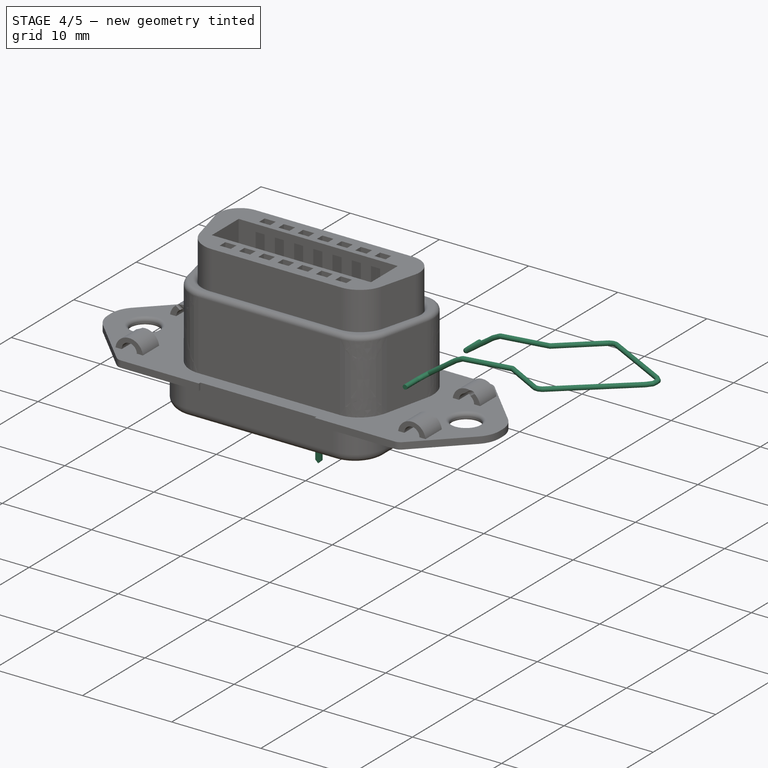
[diagram: stage 4 of 5 — iso view after this stage's code; geometry added in this stage tinted green]
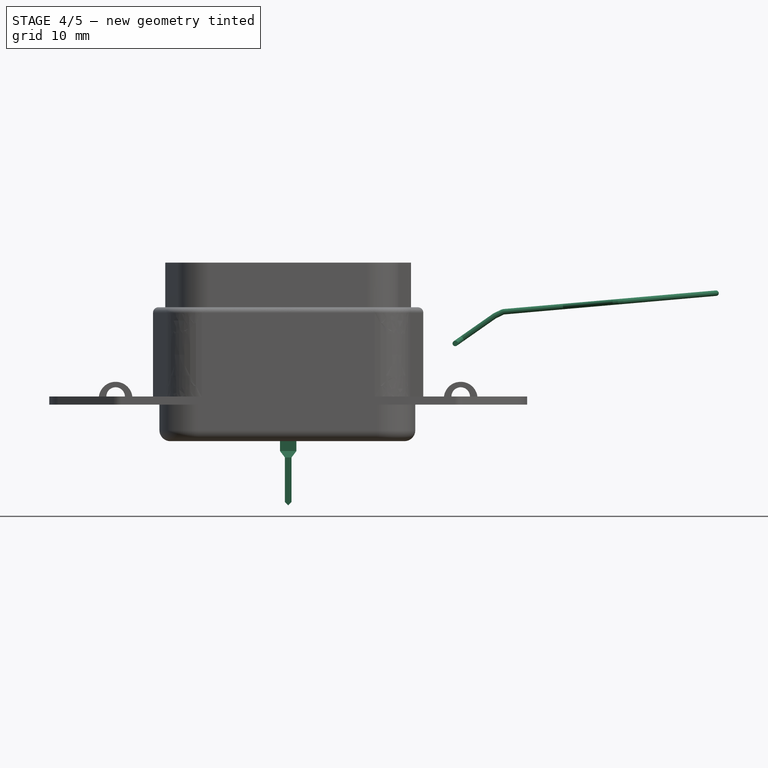
[diagram: stage 4 of 5 — front view after this stage's code; geometry added in this stage tinted green]
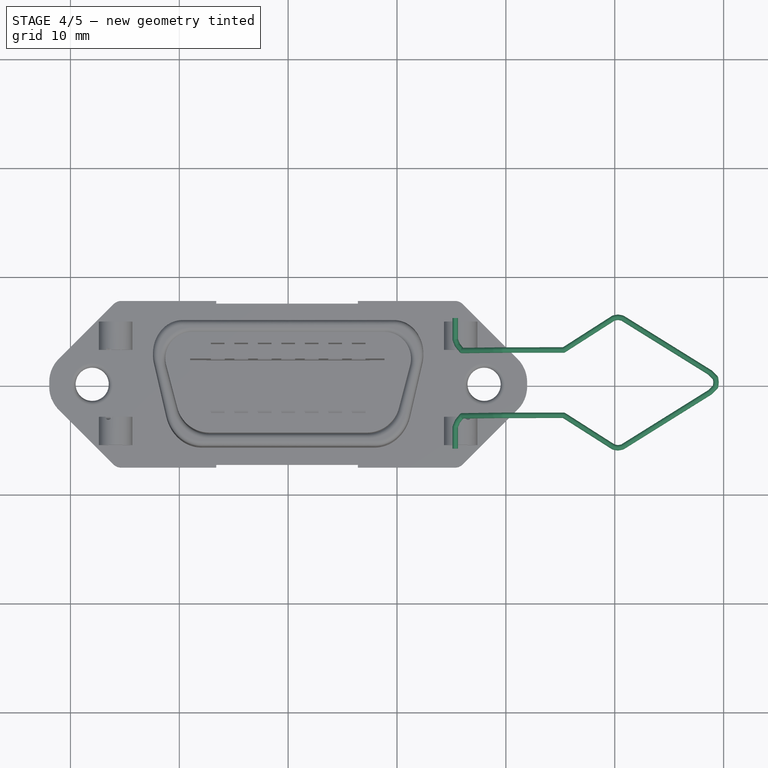
[diagram: stage 4 of 5 — top view after this stage's code; geometry added in this stage tinted green]
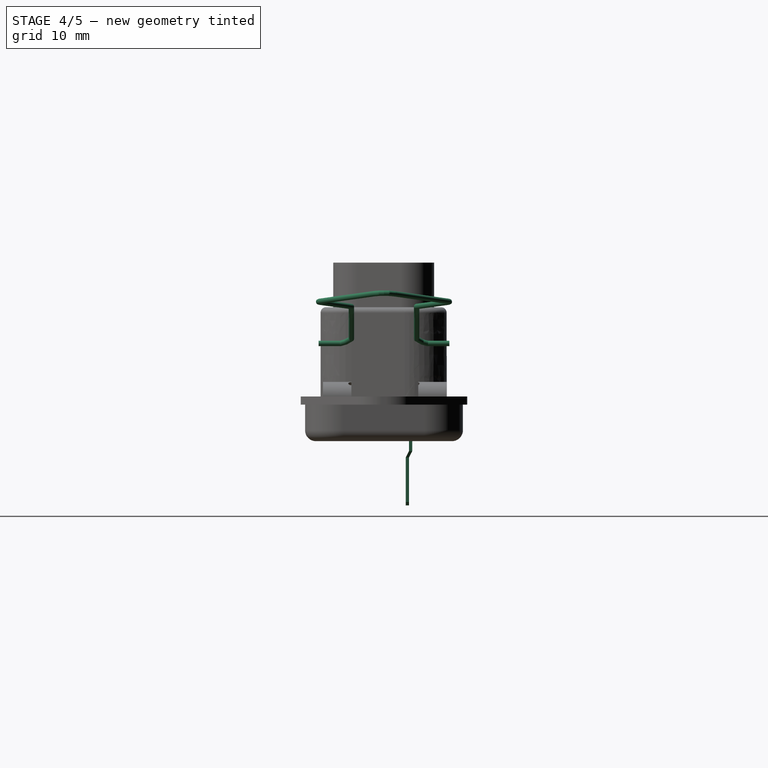
[diagram: stage 4 of 5 — right view after this stage's code; geometry added in this stage tinted green]
FEATURE [Part::Part2DObjectPython] Wire001  label="handle-top"  # Draft 2D object (typed FeaturePython)
  Area = 0
  ChamferSize = 0
  Closed = false
  End = (-18.9543,3,7.39874)
  FilletRadius = 0
  Length = 6.91612
  MakeFace = true
  Placement = pos=(-15.35,6,4.875) rot=(0,1,0;0.610865rad)
  Points = (5) [(0,0,0),(0,-2,0),(-0.25,-2.5,0),(-0.75,-3,0),(-4.4,-3,1.24345e-14)]
  Start = (-15.35,6,4.875)
  Subdivisions = 0
FEATURE [Part::Part2DObjectPython] Wire002  label="handle-mid"  # Draft 2D object (typed FeaturePython)
  Area = 0
  ChamferSize = 0
  Closed = false
  End = (-19.7333,-3,7.78219)
  FilletRadius = 0
  Length = 45.0149
  MakeFace = true
  Placement = pos=(-15.35,6,7.3987) rot=(0,1,0;0.087266rad)
  Points = (15) [(-4.4,-3,2.66454e-15),(-10,-3,0),(-14.6,-0.075,0),(-15,0,0),(-15.4,-0.075,0),(-23.5,-5.1,0),(-24,-5.6,0),(-24.05,-6,0),(-24,-6.4,0),(-23.5,-6.9,0),+5 more]
  Start = (-19.7333,3,7.78219)
  Subdivisions = 0
FEATURE [Part::Part2DObjectPython] Wire003  label="handle-bot"  # Draft 2D object (typed FeaturePython)
  Area = 0
  ChamferSize = 0
  Closed = false
  End = (-15.35,-6,4.875)
  FilletRadius = 0
  Length = 6.91612
  MakeFace = true
  Placement = pos=(-15.35,6,4.875) rot=(0,1,0;0.610865rad)
  Points = (5) [(-4.4,-9,1.24345e-14),(-0.75,-9,0),(-0.25,-9.5,0),(0,-10,0),(0,-12,0)]
  Start = (-18.9543,-3,7.39874)
  Subdivisions = 0
FEATURE [Part::Part2DObjectPython] Line001  label="connect-low"  # Draft 2D object (typed FeaturePython)
  Area = 0
  ChamferSize = 0
  Closed = false
  End = (-19.7333,-3,7.78219)
  FilletRadius = 0
  Length = 0.868248
  MakeFace = true
  Placement = pos=(-18.9543,-3,7.39874) rot=(1,0,0;1.5708rad)
  Points = (2) [(0,0,0),(-0.778988,0.383449,-5.51777e-08)]
  Start = (-18.9543,-3,7.39874)
  Subdivisions = 0
FEATURE [Part::Part2DObjectPython] Line002  label="connect-top"  # Draft 2D object (typed FeaturePython)
  Area = 0
  ChamferSize = 0
  Closed = false
  End = (-19.7333,3,7.78219)
  FilletRadius = 0
  Length = 0.868248
  MakeFace = true
  Placement = pos=(-18.9543,3,7.39874) rot=(-1,0,0;1.5708rad)
  Points = (2) [(0,0,0),(-0.778988,-0.383449,1.34707e-07)]
  Start = (-18.9543,3,7.39874)
  Subdivisions = 0
FEATURE [Part::FeaturePython] Pipe  label="Pipe-top"  # Arch/BIM 98 (typed FeaturePython)
  Base = -> Wire001
  Diameter = 0.5
  HorizontalArea = 0
  IfcData = attributes={"GlobalId": {"name": "GlobalId", "type": "IfcGloballyUniqueId", "is_enum": false, "enum_values": []}, "Description": {"... (+487 chars omitted),+1 more (map truncated)
  IfcType = 98
  Length = 6.87769
  MoveBase = false
  MoveWithHost = false
  OffsetEnd = 0.0384367
  OffsetStart = 0
  PerimeterLength = 0
  PredefinedType = 0
  VerticalArea = 0
  WallThickness = 0
FEATURE [Part::FeaturePython] Connector  label="Con-top-lo"  # Arch/BIM 97 (typed FeaturePython)
  ConnectorType = 0
  HorizontalArea = 0
  IfcData = attributes={"GlobalId": {"name": "GlobalId", "type": "IfcGloballyUniqueId", "is_enum": false, "enum_values": []}, "Description": {"... (+498 chars omitted),+1 more (map truncated)
  IfcType = 97
  MoveBase = false
  MoveWithHost = false
  PerimeterLength = 0
  Pipes = -> [Pipe,Pipe001]
  PredefinedType = 0
  Radius = 0.5
  VerticalArea = 0
FEATURE [Part::FeaturePython] Pipe003  label="pipe-bot"  # Arch/BIM 98 (typed FeaturePython)
  Base = -> Wire003
  Diameter = 0.5
  HorizontalArea = 0
  IfcData = attributes={"GlobalId": {"name": "GlobalId", "type": "IfcGloballyUniqueId", "is_enum": false, "enum_values": []}, "Description": {"... (+487 chars omitted),+1 more (map truncated)
  IfcType = 98
  Length = 6.87769
  MoveBase = false
  MoveWithHost = false
  OffsetEnd = 0
  OffsetStart = 0.0384367
  PerimeterLength = 0
  PredefinedType = 0
  VerticalArea = 0
  WallThickness = 0
FEATURE [Part::FeaturePython] Connector002  label="con-bot-lo"  # Arch/BIM 97 (typed FeaturePython)
  ConnectorType = 0
  HorizontalArea = 0
  IfcData = attributes={"GlobalId": {"name": "GlobalId", "type": "IfcGloballyUniqueId", "is_enum": false, "enum_values": []}, "Description": {"... (+498 chars omitted),+1 more (map truncated)
  IfcType = 97
  MoveBase = false
  MoveWithHost = false
  PerimeterLength = 0
  Pipes = -> [Pipe003,Pipe004]
  PredefinedType = 0
  Radius = 0.5
  VerticalArea = 0
FEATURE [Part::FeaturePython] Connector003  label="con-bot-hi"  # Arch/BIM 97 (typed FeaturePython)
  ConnectorType = 0
  HorizontalArea = 0
  IfcData = attributes={"GlobalId": {"name": "GlobalId", "type": "IfcGloballyUniqueId", "is_enum": false, "enum_values": []}, "Description": {"... (+498 chars omitted),+1 more (map truncated)
  IfcType = 97
  MoveBase = false
  MoveWithHost = false
  PerimeterLength = 0
  Pipes = -> [Pipe002,Pipe004]
  PredefinedType = 0
  Radius = 0.5
  VerticalArea = 0
FEATURE [PartDesign::AdditiveBox] Box064  label="pin-base"
  AttacherType = Attacher::AttachEngine3D
  AttachmentOffset = pos=(-0.3,2,-10) rot=(0,0,1;0rad)
  Height = 4.4
  Length = 0.61
  MapMode = 5
  Placement = pos=(-0.3,2,-10) rot=(0,0,1;0rad)
  Support = -> [XY_Plane018]
  Width = 0.3
FEATURE [Part::MultiFuse] Fusion  label="fused-handle-tubes"
  Shapes = -> [Connector001,Connector003,Connector,Connector002,Pipe,Pipe001,Pipe002,Pipe003,Pipe004]
FEATURE [PartDesign::FeatureBase] BaseFeature  label="Left Handle"
  BaseFeature = -> Fusion
FEATURE [PartDesign::Body] Body  label="Handle Left"
  BaseFeature = -> Fusion
  Group = -> [BaseFeature]
  Origin = -> Origin
  Tip = -> BaseFeature
FEATURE [Part::FeaturePython] Clone  label="Handle Right"  # Draft clone (typed FeaturePython)
  AttacherType = Attacher::AttachEngine3D
  Fuse = false
  Objects = -> [BaseFeature]
  Placement = pos=(0,0,0) rot=(0,0,1;3.14159rad)
  Scale = (1,1,1)
FEATURE [PartDesign::Chamfer] Chamfer  label="pin-point"
  Angle = 45
  Base = -> Box064 [Edge8,Edge4]
  BaseFeature = -> Box064
  ChamferType = 0
  FlipDirection = false
  Placement = pos=(-0.3,2,-10) rot=(0,0,1;0rad)
  Size = 0.30499
  Size2 = 1
  SupportTransform = false
  UseAllEdges = false
FEATURE [PartDesign::AdditiveBox] Box065  label="big-flat"
  AttacherType = Attacher::AttachEngine3D
  AttachmentOffset = pos=(-0.745,2,-5.6) rot=(0,0,1;0rad)
  BaseFeature = -> Chamfer
  Height = 6.3
  Length = 1.5
  MapMode = 5
  Placement = pos=(-0.745,2,-5.6) rot=(0,0,1;0rad)
  Support = -> [XY_Plane018]
  Width = 0.6
FEATURE [PartDesign::Chamfer] Chamfer005  label="top-angle"
  Angle = 27.149
  Base = -> Box065 [Edge12]
  BaseFeature = -> Box065
  ChamferType = 2
  FlipDirection = false
  Placement = pos=(-0.745,2,-5.6) rot=(0,0,1;0rad)
  Size = 0.585
  Size2 = 1
  SupportTransform = false
  UseAllEdges = false
FEATURE [PartDesign::SubtractiveBox] Box066  label="low-cut"
  AttacherType = Attacher::AttachEngine3D
  AttachmentOffset = pos=(-0.75,2,-5) rot=(0,0,1;0rad)
  BaseFeature = -> Chamfer005
  Height = 6.5
  Length = 1.55
  MapMode = 5
  Placement = pos=(-0.75,2,-5) rot=(0,0,1;0rad)
  Support = -> [XY_Plane018]
  Width = 0.3
FEATURE [PartDesign::Chamfer] Chamfer006  label="bot-angle"
  Angle = 26.68
  Base = -> Box066 [Edge19]
  BaseFeature = -> Box066
  ChamferType = 2
  FlipDirection = false
  Placement = pos=(-0.75,2,-5) rot=(0,0,1;0rad)
  Size = 0.597
  Size2 = 1
  SupportTransform = false
  UseAllEdges = false
FEATURE [PartDesign::Chamfer] Chamfer007  label="left-angle"
  Angle = 52.8
  Base = -> Chamfer006 [Edge16]
  BaseFeature = -> Chamfer006
  ChamferType = 2
  FlipDirection = false
  Placement = pos=(-0.75,2,-5) rot=(0,0,1;0rad)
  Size = 0.444
  Size2 = 1
  SupportTransform = false
  UseAllEdges = false
FEATURE [PartDesign::Chamfer] Chamfer008  label="right-angle"
  Angle = 37.269
  Base = -> Chamfer007 [Edge14]
  BaseFeature = -> Chamfer007
  ChamferType = 2
  FlipDirection = false
  Placement = pos=(-0.75,2,-5) rot=(0,0,1;0rad)
  Size = 0.5848
  Size2 = 1
  SupportTransform = false
  UseAllEdges = false
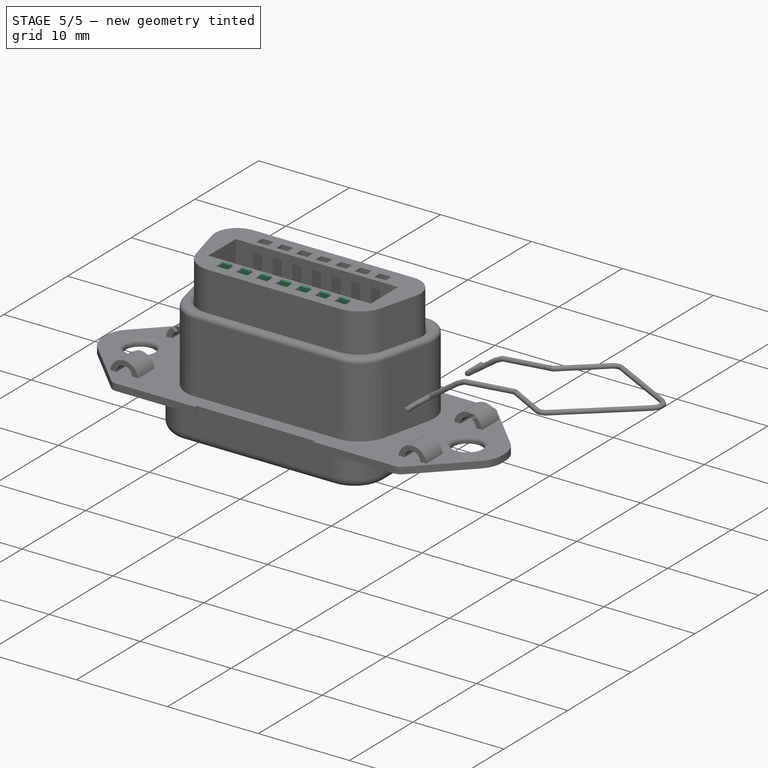
[diagram: stage 5 of 5 — iso view after this stage's code; geometry added in this stage tinted green]
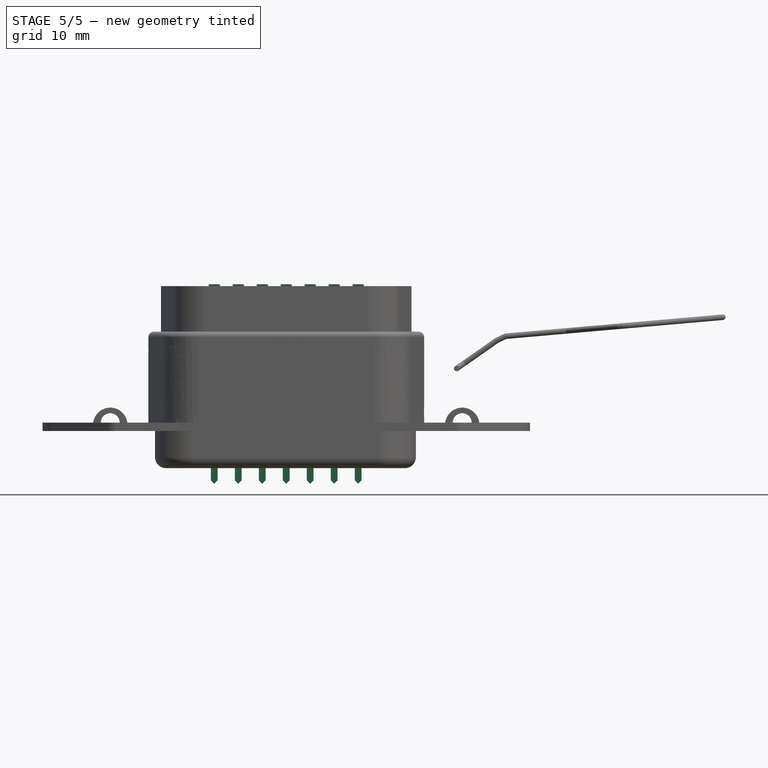
[diagram: stage 5 of 5 — front view after this stage's code; geometry added in this stage tinted green]
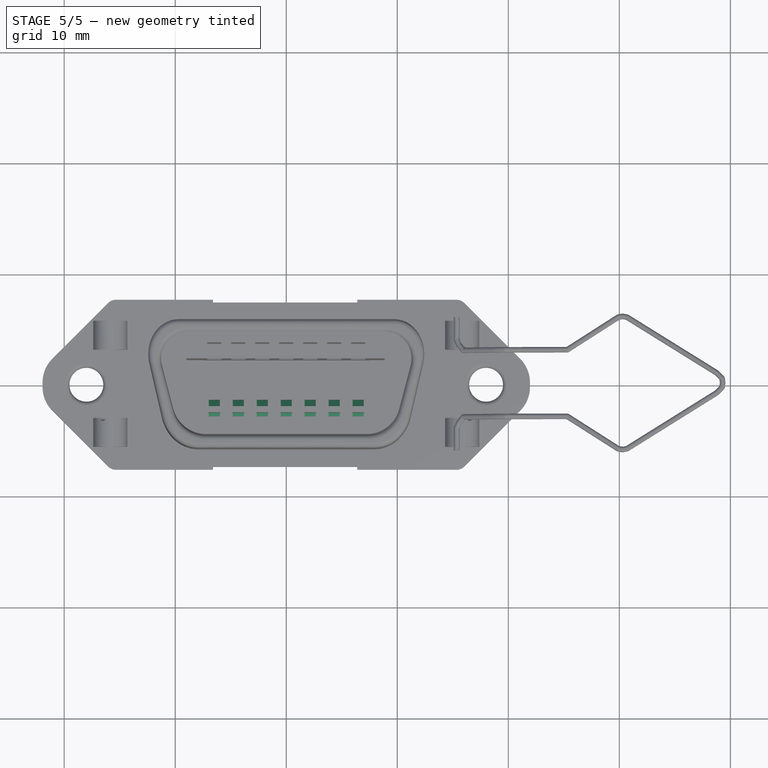
[diagram: stage 5 of 5 — top view after this stage's code; geometry added in this stage tinted green]
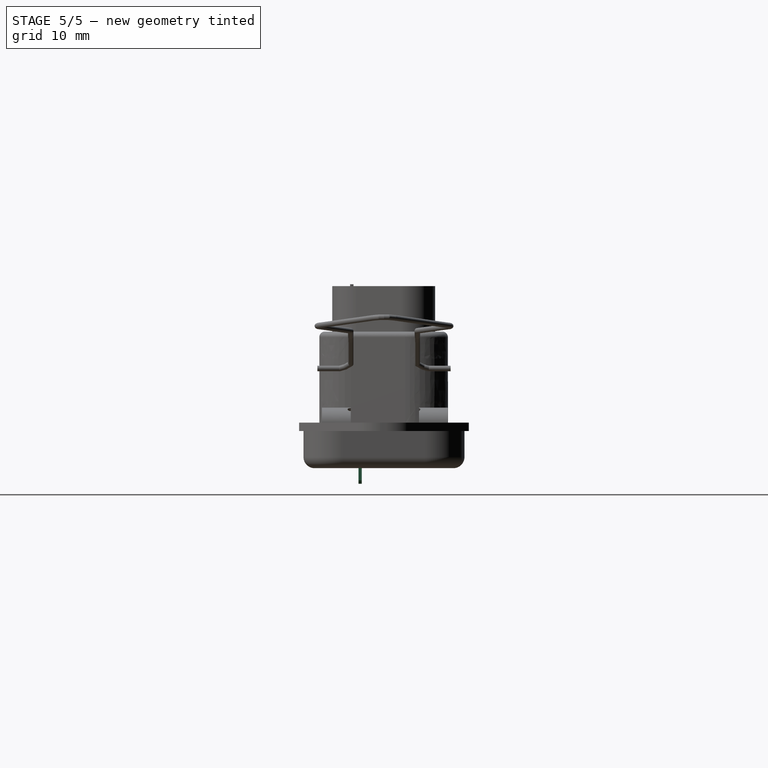
[diagram: stage 5 of 5 — right view after this stage's code; geometry added in this stage tinted green]
FEATURE [PartDesign::AdditiveBox] Box067
  AttacherType = Attacher::AttachEngine3D
  AttachmentOffset = pos=(-0.5,1.5,0) rot=(0,0,1;0rad)
  BaseFeature = -> Chamfer008
  Height = 6
  Length = 1
  MapMode = 5
  Placement = pos=(-0.5,1.5,0) rot=(0,0,1;0rad)
  Support = -> [XY_Plane018]
  Width = 1.1
FEATURE [PartDesign::Chamfer] Chamfer009
  Angle = 82
  Base = -> Box067 [Edge65]
  BaseFeature = -> Box067
  ChamferType = 2
  FlipDirection = false
  Placement = pos=(-0.5,1.5,0) rot=(0,0,1;0rad)
  Size = 0.7999
  Size2 = 1
  SupportTransform = false
  UseAllEdges = false
FEATURE [PartDesign::Chamfer] Chamfer010
  Angle = 81.54
  Base = -> Chamfer009 [Edge24]
  BaseFeature = -> Chamfer009
  ChamferType = 2
  FlipDirection = false
  Placement = pos=(-0.5,1.5,0) rot=(0,0,1;0rad)
  Size = 0.7883
  Size2 = 1
  SupportTransform = false
  UseAllEdges = false
FEATURE [PartDesign::AdditiveBox] Box068
  AttacherType = Attacher::AttachEngine3D
  AttachmentOffset = pos=(-0.5,1.5,5.7) rot=(0,0,1;0rad)
  BaseFeature = -> Chamfer010
  Height = 1.66
  Length = 1
  MapMode = 5
  Placement = pos=(-0.5,1.5,5.7) rot=(0,0,1;0rad)
  Support = -> [XY_Plane018]
  Width = 1.55
FEATURE [PartDesign::Chamfer] Chamfer011
  Angle = 41
  Base = -> Box068 [Edge23]
  BaseFeature = -> Box068
  ChamferType = 2
  FlipDirection = false
  Placement = pos=(-0.5,1.5,5.7) rot=(0,0,1;0rad)
  Size = 1.37
  Size2 = 1
  SupportTransform = false
  UseAllEdges = false
FEATURE [PartDesign::Chamfer] Chamfer012
  Angle = 46.2
  Base = -> Chamfer011 [Edge14]
  BaseFeature = -> Chamfer011
  ChamferType = 2
  FlipDirection = false
  Placement = pos=(-0.5,1.5,5.7) rot=(0,0,1;0rad)
  Size = 1.3
  Size2 = 1
  SupportTransform = false
  UseAllEdges = false
FEATURE [PartDesign::SubtractiveBox] Box069
  AttacherType = Attacher::AttachEngine3D
  AttachmentOffset = pos=(-0.5,5.075,-1.555) rot=(0,0,1;0rad)
  BaseFeature = -> Chamfer012
  Height = 0.2
  Length = 1
  MapMode = 5
  Placement = pos=(-0.5,1.555,5.075) rot=(1,0,0;1.5708rad)
  Support = -> [XZ_Plane018]
  Width = 1
FEATURE [PartDesign::AdditiveBox] Box070
  AttacherType = Attacher::AttachEngine3D
  AttachmentOffset = pos=(-0.5,2.75,7.3) rot=(0,0,1;0rad)
  BaseFeature = -> Box069
  Height = 0.66
  Length = 1
  MapMode = 5
  Placement = pos=(-0.5,2.75,7.3) rot=(0,0,1;0rad)
  Support = -> [XY_Plane018]
  Width = 0.3
FEATURE [PartDesign::Fillet] Fillet073
  Base = -> Box070 [Edge40]
  BaseFeature = -> Box070
  Placement = pos=(-0.5,2.75,7.3) rot=(0,0,1;0rad)
  Radius = 0.152
  SupportTransform = false
  UseAllEdges = false
FEATURE [PartDesign::Fillet] Fillet074
  Base = -> Fillet073 [Edge30,Edge22]
  BaseFeature = -> Fillet073
  Placement = pos=(-0.5,2.75,7.3) rot=(0,0,1;0rad)
  Radius = 0.5
  SupportTransform = false
  UseAllEdges = false
FEATURE [PartDesign::Fillet] Fillet075
  Base = -> Fillet074 [Edge29]
  BaseFeature = -> Fillet074
  Placement = pos=(-0.5,2.75,7.3) rot=(0,0,1;0rad)
  Radius = 6
  SupportTransform = false
  UseAllEdges = false
FEATURE [PartDesign::SubtractiveBox] Box071
  AttacherType = Attacher::AttachEngine3D
  AttachmentOffset = pos=(-0.5,0,-2.3) rot=(0,0,1;0rad)
  BaseFeature = -> Fillet075
  Height = 0.3
  Length = 1
  MapMode = 5
  Placement = pos=(-0.5,2.3,5e-16) rot=(1,0,0;1.5708rad)
  Support = -> [XZ_Plane018]
  Width = 0.7
FEATURE [PartDesign::Chamfer] Chamfer013
  Angle = 8
  Base = -> Box071 [Edge47]
  BaseFeature = -> Box071
  ChamferType = 2
  FlipDirection = false
  Placement = pos=(-0.5,2.3,1e-15) rot=(1,0,0;1.5708rad)
  Size = 0.676
  Size2 = 1
  SupportTransform = false
  UseAllEdges = false
FEATURE [PartDesign::SubtractiveBox] Box072
  AttacherType = Attacher::AttachEngine3D
  AttachmentOffset = pos=(-0.5,2.10195,0.672165) rot=(1,0,0;0.139626rad)
  BaseFeature = -> Chamfer013
  Height = 6
  Length = 1
  MapMode = 5
  Placement = pos=(-0.5,2.10195,0.672165) rot=(1,0,0;0.139626rad)
  Support = -> [XY_Plane018]
  Width = 0.2
FEATURE [PartDesign::Body] Body017  label="base-pin"
  Group = -> [Box064,Chamfer,Box065,Chamfer005,Box066,Chamfer006,Chamfer007,Chamfer008,Box067,Chamfer009,Chamfer010,Box068,Chamfer011,Chamfer012,Box069,Box070,Fillet073,Fillet074,Fillet075,Box071,Chamfer013,Box072]
  Origin = -> Origin018
  Placement = pos=(-6.48,0,4.5) rot=(0,0,1;0rad)
  Tip = -> Box072
FEATURE [Part::FeaturePython] Array  label="pins-top"  # Draft array (typed FeaturePython)
  AlwaysSyncPlacement = false
  Angle = 360
  ArrayType = 0
  Axis = (0,0,1)
  Base = -> Body017
  Center = (0,0,0)
  Count = 7
  ExpandArray = false
  Fuse = false
  IntervalAxis = (0,0,0)
  IntervalX = (2.16,0,0)
  IntervalY = (0,100,0)
  IntervalZ = (0,0,100)
  NumberCircles = 3
  NumberPolar = 5
  NumberX = 7
  NumberY = 1
  NumberZ = 1
  PlacementList = 7 placements: arithmetic series from (-6.48,0,4.5) step (2.16,0,0) to (6.48,0,4.5)
  RadialDistance = 50
  ScaleList = (7) [(1,1,1),(1,1,1),(1,1,1),(1,1,1),(1,1,1),(1,1,1),(1,1,1)]
  Symmetry = 1
  TangentialDistance = 25
FEATURE [Part::FeaturePython] Clone001  label="pins-bot"  # Draft clone (typed FeaturePython)
  AttacherType = Attacher::AttachEngine3D
  Fuse = false
  Objects = -> [Array]
  Placement = pos=(0,0,0) rot=(0,0,1;3.14159rad)
  Scale = (1,1,1)
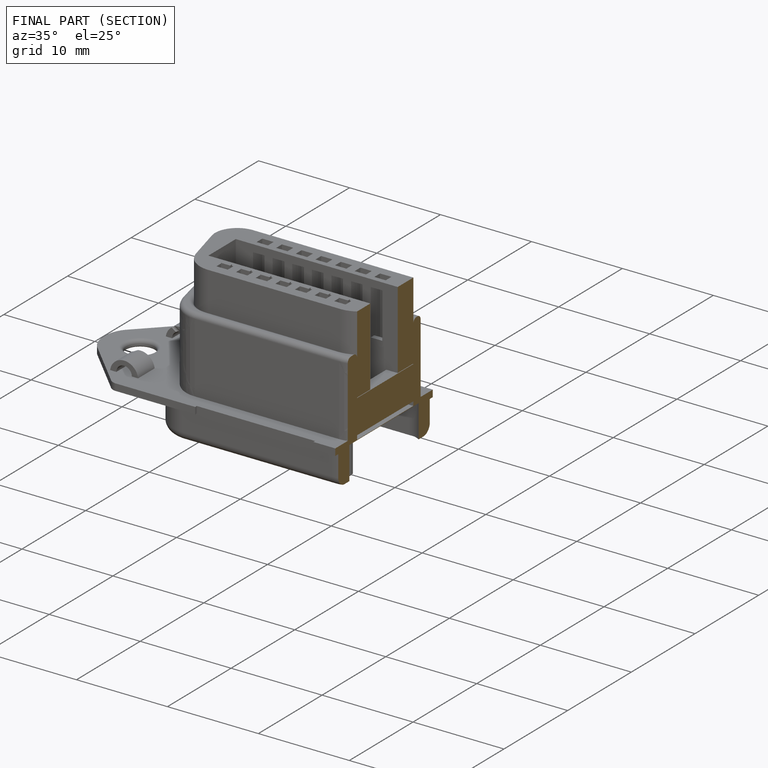
[diagram: finished part — half-section view (interior)]
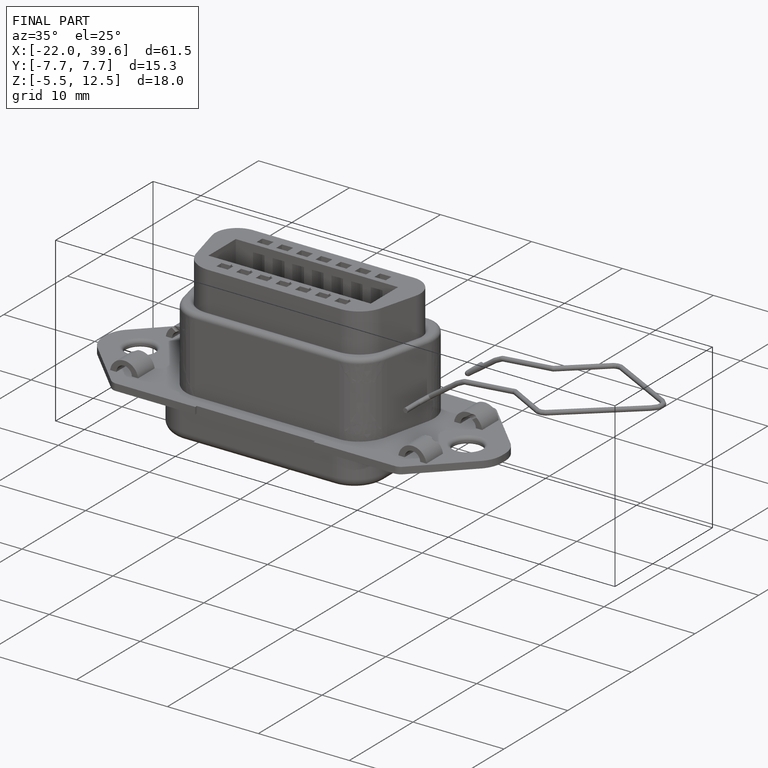
[diagram: finished part — iso view with bounding-box wireframe]
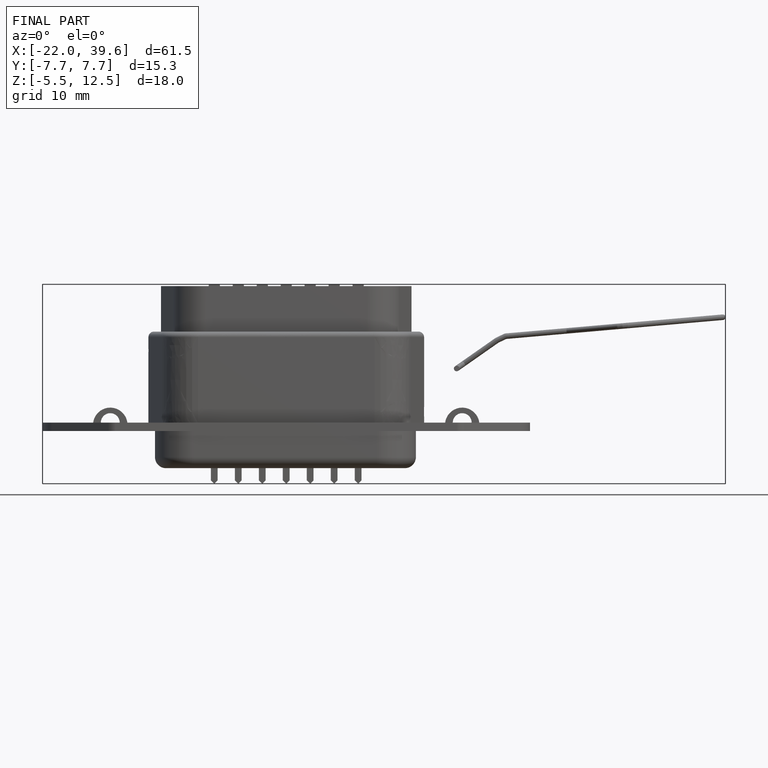
[diagram: finished part — front view with bounding-box wireframe]
